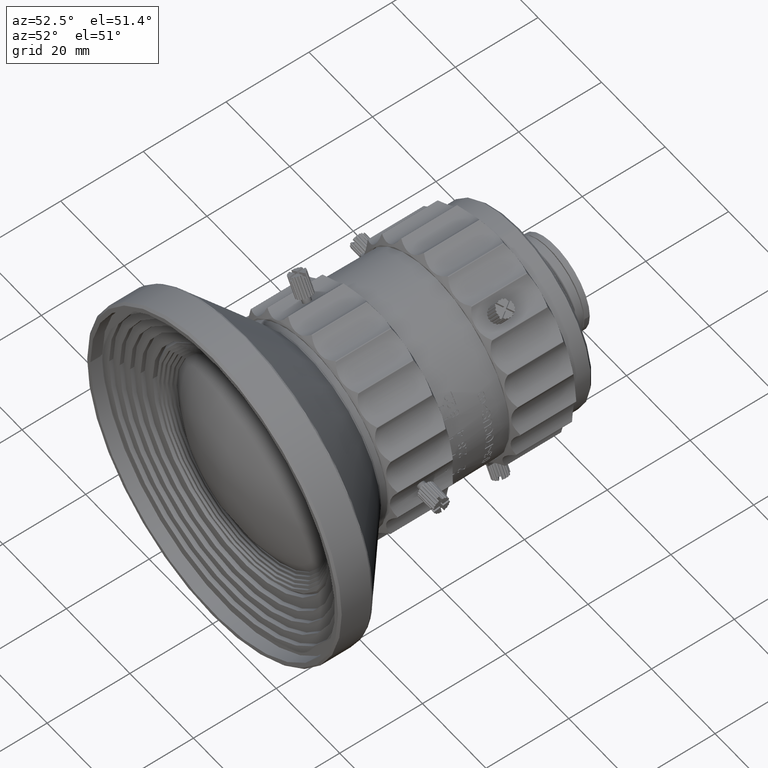
[diagram: clean part render]
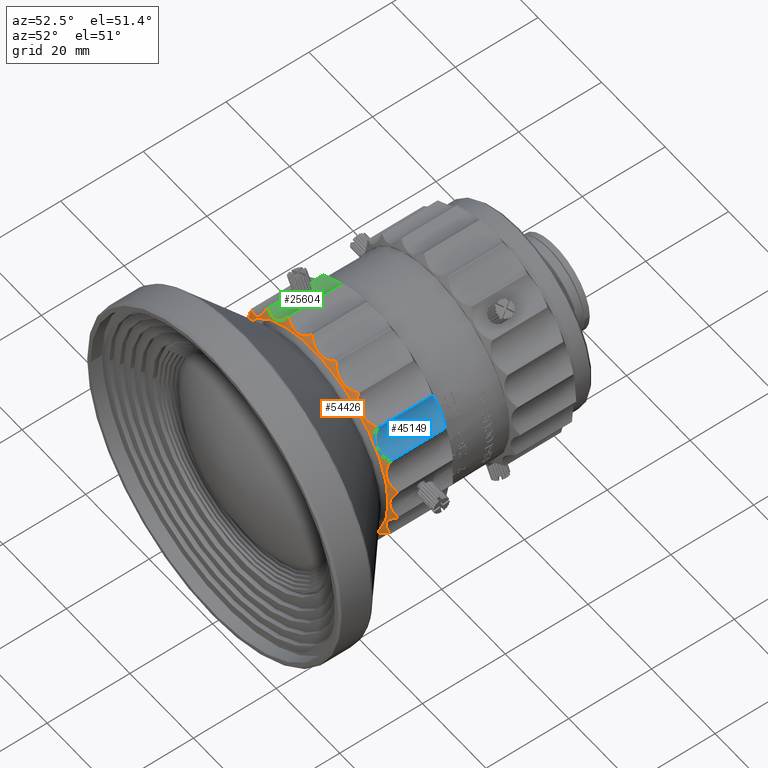
[diagram: same view with three faces highlighted in distinct colors, each labeled with its STEP entity id]
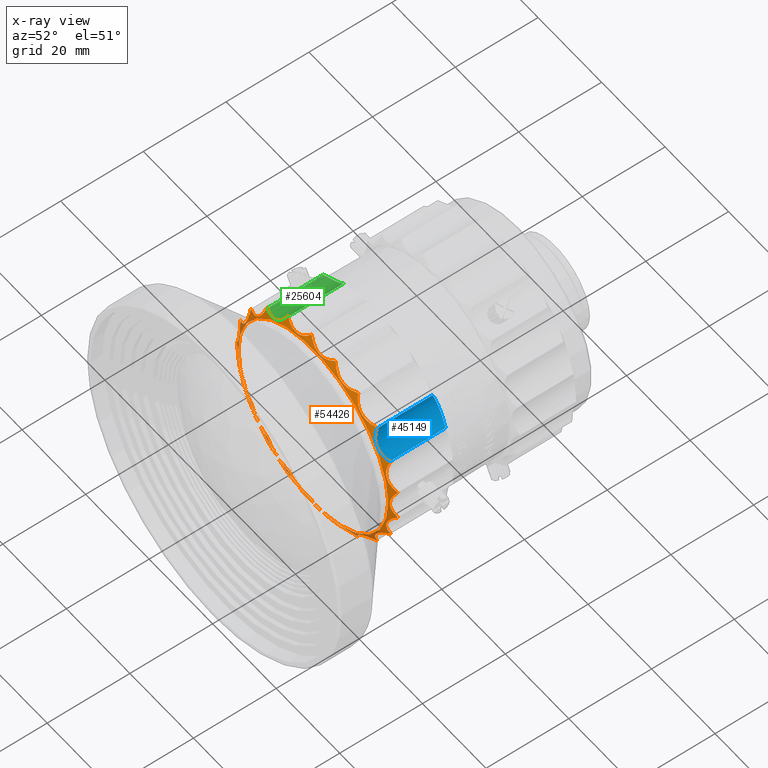
[diagram: x-ray of the same camera — body ghosted, the three highlighted faces saturated]
A machine part, auxiliary view with three faces highlighted in distinct colors.
The next image is the same camera in x-ray (body ghosted, the three faces saturated) — at least one of them is partly hidden behind the body in this view.
Their STEP definitions:

[orange] entity #54426 — the highlighted conical surface has half-angle 60 deg.
#115 = VERTEX_POINT ( 'NONE', #26229 ) ;
#287 = ORIENTED_EDGE ( 'NONE', *, *, #83580, .T. ) ;
#382 = CARTESIAN_POINT ( 'NONE',  ( -12.23831301489829748, 24.47379505658525645, 20.53129627703142290 ) ) ;
#383 = DIRECTION ( 'NONE',  ( 1.000000000000000000, -2.940207327727504421E-16, 1.836133133014498953E-11 ) ) ;
#729 = ORIENTED_EDGE ( 'NONE', *, *, #61579, .T. ) ;
#745 = B_SPLINE_CURVE_WITH_KNOTS ( 'NONE', 3,
 ( #110795, #69825, #7313, #103365, #93727, #51103 ),
 .UNSPECIFIED., .F., .F.,
 ( 4, 2, 4 ),
 ( 7.757919228897726952E-18, 0.0001644141553623823982, 0.0003288283107247570443 ),
 .UNSPECIFIED. ) ;
#895 = CARTESIAN_POINT ( 'NONE',  ( -20.90097677180437330, 25.33706370086007809, 14.42403118449156807 ) ) ;
#955 = CARTESIAN_POINT ( 'NONE',  ( -10.63081991278970762, 24.63390651818840382, 21.71649081805131587 ) ) ;
#1300 = CARTESIAN_POINT ( 'NONE',  ( -21.86008770118464639, 24.50002164830052465, -9.774186002567015308 ) ) ;
#1437 = CARTESIAN_POINT ( 'NONE',  ( -9.391759939298818693, 25.35822982019824323, -23.63393671508431382 ) ) ;
#1513 = CARTESIAN_POINT ( 'NONE',  ( 6.774960284222493634, 24.78684744728237277, -23.48615333596872645 ) ) ;
#1514 = DIRECTION ( 'NONE',  ( 3.638181863438339145E-16, 1.000000000000000000, 2.323621186487833834E-16 ) ) ;
#1904 = EDGE_LOOP ( 'NONE', ( #74985, #35957, #13651, #44954, #111343, #8399, #97270, #105815, #46204, #43041, #34806, #81341, #14587, #54865, #81866, #44868, #81149, #729, #17836, #68868, #60602, #54773, #22855, #23498, #287, #15712, #73336, #24569, #89299, #17882, #71815, #41616, #63994, #69604, #31243, #63172, #70133, #19769, #29564, #37555, #30413, #76303 ) ) ;
#1927 = B_SPLINE_CURVE_WITH_KNOTS ( 'NONE', 3,
 ( #82598, #46849, #81485, #3629, #38312, #72961, #74070, #107655, #64435, #65556, #21219, #55926, #104018, #27267, #111986, #26130, #9636, #14374 ),
 .UNSPECIFIED., .F., .F.,
 ( 4, 2, 2, 2, 2, 2, 2, 2, 4 ),
 ( 1.315215165163799032E-10, 0.001003702040467653730, 0.002007403949413790693, 0.003011105858359927872, 0.003512956812832996895, 0.004014807767306067220, 0.005018509676252194858, 0.006022211585198319027, 0.008029615403090569967 ),
 .UNSPECIFIED. ) ;
#2008 = CARTESIAN_POINT ( 'NONE',  ( -21.84642559030722708, 24.49395106369203745, 9.782983935118375385 ) ) ;
#2401 = CARTESIAN_POINT ( 'NONE',  ( -21.26966781566594733, 24.49395106369250641, -10.98063298597601900 ) ) ;
#2509 = B_SPLINE_CURVE_WITH_KNOTS ( 'NONE', 3,
 ( #106469, #62151, #28570, #53085, #54196, #63266 ),
 .UNSPECIFIED., .F., .F.,
 ( 4, 2, 4 ),
 ( 0.000000000000000000, 0.0001644140867908846072, 0.0003288281735817692145 ),
 .UNSPECIFIED. ) ;
#2540 = CARTESIAN_POINT ( 'NONE',  ( -9.652484914242650760, 25.07844969826452797, -23.00815608294285397 ) ) ;
#2658 = VERTEX_POINT ( 'NONE', #43154 ) ;
#3097 = CARTESIAN_POINT ( 'NONE',  ( -12.25138631248945487, 24.47937016225224838, -20.53265583036457542 ) ) ;
#3402 = CARTESIAN_POINT ( 'NONE',  ( 22.95832936079571596, 25.37205000964630486, 10.99559537557177435 ) ) ;
#3541 = B_SPLINE_CURVE_WITH_KNOTS ( 'NONE', 3,
 ( #75205, #75775, #100802, #49647, #93417, #16075, #84300, #57053, #50228, #15517, #109902, #110475, #22913, #6436, #84866, #50793 ),
 .UNSPECIFIED., .F., .F.,
 ( 4, 2, 2, 2, 2, 2, 2, 4 ),
 ( -0.003569091671438096025, -0.002564876732692541843, -0.001560661793946988094, -0.0005564468552014343455, 0.0004477680835441198368, 0.001451983022289674019, 0.002456197961035227334, 0.004464627838526335699 ),
 .UNSPECIFIED. ) ;
#3629 = CARTESIAN_POINT ( 'NONE',  ( 13.24619705269522996, 24.87981390206180166, -20.73432385937292821 ) ) ;
#3685 = CARTESIAN_POINT ( 'NONE',  ( -15.97549845769552235, 25.20788189031693349, 19.45303911351436810 ) ) ;
#4171 = VERTEX_POINT ( 'NONE', #49982 ) ;
#4189 = CARTESIAN_POINT ( 'NONE',  ( -14.13809538544489008, 24.78684741988568874, -19.94025364672699752 ) ) ;
#4261 = CARTESIAN_POINT ( 'NONE',  ( 11.32687030652311932, 24.86050124474918732, -21.81105883212519814 ) ) ;
#4579 = CARTESIAN_POINT ( 'NONE',  ( 18.69754077753782440, 25.37198653376644941, -17.27380523829919667 ) ) ;
#4908 = CARTESIAN_POINT ( 'NONE',  ( -24.40487641239396766, 24.78684741988754325, -1.378936020828931852 ) ) ;
#4938 = B_SPLINE_CURVE_WITH_KNOTS ( 'NONE', 3,
 ( #44760, #26561, #33969, #111849, #19159, #27686 ),
 .UNSPECIFIED., .F., .F.,
 ( 4, 2, 4 ),
 ( 8.944667923005411581E-19, 0.0001644140867937396910, 0.0003288281735874784605 ),
 .UNSPECIFIED. ) ;
#4981 = CARTESIAN_POINT ( 'NONE',  ( 23.92762813739965821, 24.49395106369019359, 0.6646459334354283266 ) ) ;
#5730 = CARTESIAN_POINT ( 'NONE',  ( -7.626821696442469545, 24.78542365346142162, 23.22087336732188589 ) ) ;
#5804 = CARTESIAN_POINT ( 'NONE',  ( 25.17936374819096557, 25.37205000964690171, -3.740004964084009842 ) ) ;
#5819 = CARTESIAN_POINT ( 'NONE',  ( 1.441878675376857322, 24.47945628798919415, -23.86659843680243043 ) ) ;
#6118 = CARTESIAN_POINT ( 'NONE',  ( -15.72084727735828125, 25.33706370085887727, -19.94388241962598585 ) ) ;
#6436 = CARTESIAN_POINT ( 'NONE',  ( -0.7567393065033932720, 24.86540902505414152, 24.57373635757808117 ) ) ;
#6758 = CARTESIAN_POINT ( 'NONE',  ( 5.764379306261820268, 25.35825239773012285, 24.76978204961731933 ) ) ;
#6775 = CARTESIAN_POINT ( 'NONE',  ( 22.94206651751589021, 25.33706370085890214, -10.88876165961012354 ) ) ;
#6824 = CARTESIAN_POINT ( 'NONE',  ( -18.13588671656010121, 24.51530814269462155, -15.67656778933500306 ) ) ;
#6841 = CARTESIAN_POINT ( 'NONE',  ( 19.00178606689671312, 24.63321955789962914, 14.94971439571006755 ) ) ;
#6995 = CARTESIAN_POINT ( 'NONE',  ( -23.94482759241260794, 25.20788189032046489, -7.764179294375796125 ) ) ;
#7191 = CARTESIAN_POINT ( 'NONE',  ( 5.611200690427403437, 25.37204957269194594, -24.82946515326301906 ) ) ;
#7313 = CARTESIAN_POINT ( 'NONE',  ( -15.91417613990792468, 25.37198654453910862, 19.86759569830248751 ) ) ;
#7409 = CARTESIAN_POINT ( 'NONE',  ( -6.978787555570345802, 24.63416883444635985, 23.15031677563627355 ) ) ;
#7447 = CARTESIAN_POINT ( 'NONE',  ( 15.17478345873239576, 24.47937016225057860, 18.47734934943214569 ) ) ;
#7545 = EDGE_CURVE ( 'NONE', #22862, #94500, #72878, .T. ) ;
#7951 = CARTESIAN_POINT ( 'NONE',  ( 20.61465591973719214, 24.57528408630916772, 12.44070395487644554 ) ) ;
#7963 = CARTESIAN_POINT ( 'NONE',  ( -4.509739973551099013, 24.51515716930673960, 23.54389418476198870 ) ) ;
#8133 = CARTESIAN_POINT ( 'NONE',  ( -23.81307039959513361, 24.87981386977759257, 6.189633875789312789 ) ) ;
#8320 = CARTESIAN_POINT ( 'NONE',  ( -15.41009838185490466, 25.20774525849734715, 19.90362626367890542 ) ) ;
#8347 = CARTESIAN_POINT ( 'NONE',  ( 22.88941938784381236, 24.47405427491911212, 6.879043343357172269 ) ) ;
#8399 = ORIENTED_EDGE ( 'NONE', *, *, #11846, .F. ) ;
#8700 = CARTESIAN_POINT ( 'NONE',  ( -23.58924425965324190, 24.47937016225490581, 3.903073297471075342 ) ) ;
#8847 = FACE_BOUND ( 'NONE', #73225, .T. ) ;
#8885 = CARTESIAN_POINT ( 'NONE',  ( -9.674849843370587621, 25.08999305205367492, 23.01774854853006147 ) ) ;
#9081 = CARTESIAN_POINT ( 'NONE',  ( 19.94690464892055459, 24.47937016225214890, 13.18360684073454259 ) ) ;
#9319 = B_SPLINE_CURVE_WITH_KNOTS ( 'NONE', 3,
 ( #51370, #86570, #85997, #8133, #34861, #42830, #77479, #112176, #69525, #8700, #104211, #26319, #61007, #88263, #88821, #10940, #29106, #10377 ),
 .UNSPECIFIED., .F., .F.,
 ( 4, 2, 2, 2, 2, 2, 2, 2, 4 ),
 ( 0.000000000000000000, 0.001003701892336417503, 0.002007403784672835007, 0.003011105677009252943, 0.003512956623177459960, 0.004014807569345668278, 0.005018509461682084914, 0.006022211354018501550, 0.008029615138691331352 ),
 .UNSPECIFIED. ) ;
#9338 = CARTESIAN_POINT ( 'NONE',  ( -4.994513334107787195, 24.47375624480995526, -23.37438729070457555 ) ) ;
#9450 = CARTESIAN_POINT ( 'NONE',  ( 10.01242172563758714, 24.57327255884088757, -21.89338019976560901 ) ) ;
#9522 = CARTESIAN_POINT ( 'NONE',  ( -24.96133664154009324, 25.09004967232839789, -0.5966234141666105772 ) ) ;
#9636 = CARTESIAN_POINT ( 'NONE',  ( 17.89124058654359573, 25.07844969391309675, -17.39106852357362598 ) ) ;
#9961 = CARTESIAN_POINT ( 'NONE',  ( -20.95157493876802235, 25.35825244009657808, 14.41532646487866209 ) ) ;
#10015 = CARTESIAN_POINT ( 'NONE',  ( 5.790967719412029702, 25.33706375249489184, -24.72586113302849142 ) ) ;
#10377 = CARTESIAN_POINT ( 'NONE',  ( -25.39454316477383955, 25.33706370085985426, 0.1437540735791313640 ) ) ;
#10940 = CARTESIAN_POINT ( 'NONE',  ( -24.55236549897134779, 24.86050125257193244, 1.096173179540908871 ) ) ;
#11593 = CARTESIAN_POINT ( 'NONE',  ( -9.411484485477549455, 25.33706370085638326, -23.58659472577447147 ) ) ;
#11630 = EDGE_CURVE ( 'NONE', #103020, #111629, #57578, .T. ) ;
#11846 = EDGE_CURVE ( 'NONE', #103356, #73466, #745, .T. ) ;
#11997 = CARTESIAN_POINT ( 'NONE',  ( 6.550806353596806630, 24.87764212916365381, 23.71238271739032299 ) ) ;
#12139 = CARTESIAN_POINT ( 'NONE',  ( 18.51774128777790906, 25.33706370085625181, 17.37805572661697795 ) ) ;
#12305 = CARTESIAN_POINT ( 'NONE',  ( -23.56131463176064855, 24.49395106369220443, -4.223449400619509575 ) ) ;
#12939 = CARTESIAN_POINT ( 'NONE',  ( 24.75189152012137939, 25.07844969826752290, 3.144780896093590794 ) ) ;
#13231 = B_SPLINE_CURVE_WITH_KNOTS ( 'NONE', 3,
 ( #66589, #32477, #23935, #67153, #59200, #15965, #75669, #85323, #110368, #7447, #101266, #42137, #76785, #13717, #101832, #93307, #109800, #111483 ),
 .UNSPECIFIED., .F., .F.,
 ( 4, 2, 2, 2, 2, 2, 2, 2, 4 ),
 ( 3.469446951953613804E-18, 0.001003701892336532212, 0.002007403784673060954, 0.003011105677009589480, 0.003512956623177853309, 0.004014807569346116704, 0.005018509461682646965, 0.006022211354019178960, 0.008029615138692250756 ),
 .UNSPECIFIED. ) ;
#13514 = CARTESIAN_POINT ( 'NONE',  ( -15.82874959626673039, 25.37206659960357058, -19.93589904127509627 ) ) ;
#13651 = ORIENTED_EDGE ( 'NONE', *, *, #77950, .T. ) ;
#13717 = CARTESIAN_POINT ( 'NONE',  ( 13.95401393759160591, 24.57327256628192558, 19.61770170346335362 ) ) ;
#14374 = CARTESIAN_POINT ( 'NONE',  ( 18.51774128841703160, 25.33706370085684867, -17.37805491711063866 ) ) ;
#14424 = CARTESIAN_POINT ( 'NONE',  ( -18.80318777537105746, 24.63321955790260631, 15.19874701970956465 ) ) ;
#14476 = CARTESIAN_POINT ( 'NONE',  ( -8.564018403089471931, 25.09004967232336014, -23.45382441534209761 ) ) ;
#14587 = ORIENTED_EDGE ( 'NONE', *, *, #86465, .T. ) ;
#14631 = CARTESIAN_POINT ( 'NONE',  ( -21.00130865086147125, 25.37198653376951896, -14.38496994126841422 ) ) ;
#14698 = CARTESIAN_POINT ( 'NONE',  ( 5.510668854198438105, 25.33706370085377557, -24.78983742764600962 ) ) ;
#14885 = CARTESIAN_POINT ( 'NONE',  ( 25.13233386509582701, 25.33706370085971571, -3.642711901393926421 ) ) ;
#15290 = CARTESIAN_POINT ( 'NONE',  ( 22.64425070892173864, 24.51530814269365521, -7.867854722026411451 ) ) ;
#15355 = CARTESIAN_POINT ( 'NONE',  ( 19.84487323712701468, 24.47405427491778696, 13.32020136406450384 ) ) ;
#15367 = CARTESIAN_POINT ( 'NONE',  ( -1.957470027417988145, 25.37199193705267675, -25.38013348754926923 ) ) ;
#15380 = CARTESIAN_POINT ( 'NONE',  ( 12.68012189051256300, 25.37198653376437107, 22.07253747928279353 ) ) ;
#15426 = B_SPLINE_CURVE_WITH_KNOTS ( 'NONE', 3,
 ( #68774, #101778, #24436, #77863, #24994, #69331 ),
 .UNSPECIFIED., .F., .F.,
 ( 4, 2, 4 ),
 ( 1.508200129006291679E-10, 0.0001644143131836828058, 0.0003288284755473527203 ),
 .UNSPECIFIED. ) ;
#15517 = CARTESIAN_POINT ( 'NONE',  ( 1.448752275189375771, 24.47405345817460187, 23.85858691888648409 ) ) ;
#15558 = CARTESIAN_POINT ( 'NONE',  ( -17.08491992955151773, 24.50002164829892237, 16.77807156626739626 ) ) ;
#15712 = ORIENTED_EDGE ( 'NONE', *, *, #108288, .F. ) ;
#15915 = CARTESIAN_POINT ( 'NONE',  ( 21.66623698840288625, 24.87981386977493869, 11.65967976713495347 ) ) ;
#15965 = CARTESIAN_POINT ( 'NONE',  ( 16.33194808253045949, 24.63401784186363130, 17.82966866903327485 ) ) ;
#16068 = CARTESIAN_POINT ( 'NONE',  ( -21.95090971615773512, 24.51530814269604974, -9.634455190885084619 ) ) ;
#16075 = CARTESIAN_POINT ( 'NONE',  ( 3.448250549378863106, 24.63359460793930822, 23.93123450153583676 ) ) ;
#16265 = CARTESIAN_POINT ( 'NONE',  ( 5.553676885111819672, 25.35825058630851814, -24.81786945768130437 ) ) ;
#16275 = CARTESIAN_POINT ( 'NONE',  ( -11.80074017730789926, 24.47403409550805620, 20.78431121513285618 ) ) ;
#16471 = CARTESIAN_POINT ( 'NONE',  ( 21.38973711194316607, 24.78684741988481832, 11.83125852879825501 ) ) ;
#16673 = CARTESIAN_POINT ( 'NONE',  ( -17.74555582414154387, 24.47375624481529499, 16.01257028546855210 ) ) ;
#16796 = DIRECTION ( 'NONE',  ( 3.638181863438339145E-16, 1.000000000000000000, 2.323621186487833834E-16 ) ) ;
#16861 = CARTESIAN_POINT ( 'NONE',  ( 23.36576637347228669, 24.57528408631062078, 5.811722107506476220 ) ) ;
#17207 = CARTESIAN_POINT ( 'NONE',  ( 18.71329594186267542, 25.33706370085689130, 17.16729793340505239 ) ) ;
#17287 = CARTESIAN_POINT ( 'NONE',  ( -4.676415826211915316, 24.49395106368605823, -23.47560900000252815 ) ) ;
#17401 = CARTESIAN_POINT ( 'NONE',  ( -14.13098936602178313, 24.78500006465383265, 19.94134291622694732 ) ) ;
#17712 = CARTESIAN_POINT ( 'NONE',  ( 5.510668854198438105, 25.33706370085377557, -24.78983742764600962 ) ) ;
#17829 = CARTESIAN_POINT ( 'NONE',  ( -20.90097677127236864, 25.33706370085989334, -14.42403037643508590 ) ) ;
#17836 = ORIENTED_EDGE ( 'NONE', *, *, #59141, .T. ) ;
#17859 = CARTESIAN_POINT ( 'NONE',  ( -6.153647384968114586, 24.51530814268947722, -23.16889723825535086 ) ) ;
#17882 = ORIENTED_EDGE ( 'NONE', *, *, #11630, .F. ) ;
#17974 = CARTESIAN_POINT ( 'NONE',  ( -9.411484486349726453, 25.33706370085752724, 23.58659553425541233 ) ) ;
#18330 = CARTESIAN_POINT ( 'NONE',  ( -21.01768967513055131, 24.63321955790332041, -11.95066848102772461 ) ) ;
#18431 = CARTESIAN_POINT ( 'NONE',  ( -2.008250044491363351, 25.35825244561891267, 25.35226019774495754 ) ) ;
#18537 = CARTESIAN_POINT ( 'NONE',  ( -12.54043758652123053, 24.49403746330698795, 20.38915733181555012 ) ) ;
#18992 = CARTESIAN_POINT ( 'NONE',  ( -2.441878882888370406, 25.07844969826212989, -24.83108832703373281 ) ) ;
#19011 = CARTESIAN_POINT ( 'NONE',  ( -25.39454316477383955, 25.33706370085985426, 0.1437540735791313640 ) ) ;
#19056 = EDGE_CURVE ( 'NONE', #62915, #99045, #35099, .T. ) ;
#19159 = CARTESIAN_POINT ( 'NONE',  ( -25.43144578907096687, 25.35825244009647506, 0.1080589343636321475 ) ) ;
#19240 = EDGE_CURVE ( 'NONE', #20591, #66471, #9319, .T. ) ;
#19253 = CARTESIAN_POINT ( 'NONE',  ( -24.22396269439712668, 25.33706370086234472, -7.622539899549274800 ) ) ;
#19423 = CARTESIAN_POINT ( 'NONE',  ( 10.02396798824489288, 24.57512546163905043, 21.89162332205059869 ) ) ;
#19654 = CARTESIAN_POINT ( 'NONE',  ( 12.57277830369329230, 25.33706370085577575, -22.06419653497933808 ) ) ;
#19678 = B_SPLINE_CURVE_WITH_KNOTS ( 'NONE', 3,
 ( #6775, #31792, #93191, #100588, #58528, #76112, #57405, #15290, #67590, #74983, #110249, #23261, #47750, #84074, #65350, #92064, #100030, #56837 ),
 .UNSPECIFIED., .F., .F.,
 ( 4, 2, 2, 2, 2, 2, 2, 2, 4 ),
 ( 1.734723475976807094E-18, 0.001003701892336571894, 0.002007403784673142053, 0.003011105677009711778, 0.003512956623177999893, 0.004014807569346287575, 0.005018509461682859468, 0.006022211354019431362, 0.008029615138692571680 ),
 .UNSPECIFIED. ) ;
#19769 = ORIENTED_EDGE ( 'NONE', *, *, #27255, .F. ) ;
#20591 = VERTEX_POINT ( 'NONE', #102110 ) ;
#20673 = CARTESIAN_POINT ( 'NONE',  ( -15.41042672070831188, 25.20788189031700099, -19.90366797774477092 ) ) ;
#20988 = VERTEX_POINT ( 'NONE', #71377 ) ;
#20991 = CARTESIAN_POINT ( 'NONE',  ( 22.81732175772382476, 25.33706370085737447, 11.14779763124938050 ) ) ;
#21219 = CARTESIAN_POINT ( 'NONE',  ( 14.76596480519577881, 24.47405427632558528, -18.79396202443571440 ) ) ;
#21271 = B_SPLINE_CURVE_WITH_KNOTS ( 'NONE', 3,
 ( #23637, #93003, #49811, #41280, #85021, #44090, #62267, #70790, #27575, #43527, #105473, #103777, #2008, #96929, #52640, #61710, #53762, #77612 ),
 .UNSPECIFIED., .F., .F.,
 ( 4, 2, 2, 2, 2, 2, 2, 2, 4 ),
 ( 1.734723475976807094E-18, 0.001003701892336848365, 0.002007403784673694996, 0.003011105677010541843, 0.003512956623178963532, 0.004014807569347385655, 0.005018509461684232502, 0.006022211354021081951, 0.008029615138694773044 ),
 .UNSPECIFIED. ) ;
#21458 = CARTESIAN_POINT ( 'NONE',  ( 23.90749611343437664, 24.47937016225344564, -0.3436838630083050572 ) ) ;
#21573 = EDGE_CURVE ( 'NONE', #60484, #20988, #48157, .T. ) ;
#21741 = CARTESIAN_POINT ( 'NONE',  ( -1.754384233487920497, 25.33706370085467441, -25.33427789089196480 ) ) ;
#21791 = CARTESIAN_POINT ( 'NONE',  ( -12.10019304438986687, 24.47405427491784025, -20.61145347295434860 ) ) ;
#22243 = CARTESIAN_POINT ( 'NONE',  ( 12.68057969685785835, 25.37205626688258064, -22.07241292652005882 ) ) ;
#22296 = CARTESIAN_POINT ( 'NONE',  ( -0.003916730935108777949, 24.67409523816892047, -24.24712074209752899 ) ) ;
#22772 = CARTESIAN_POINT ( 'NONE',  ( -1.792714868395217209, 25.35824004827894740, -25.36838986549088304 ) ) ;
#22855 = ORIENTED_EDGE ( 'NONE', *, *, #84550, .T. ) ;
#22862 = VERTEX_POINT ( 'NONE', #71198 ) ;
#22870 = B_SPLINE_CURVE_WITH_KNOTS ( 'NONE', 3,
 ( #108058, #47790, #4579, #106387, #72259, #39269 ),
 .UNSPECIFIED., .F., .F.,
 ( 4, 2, 4 ),
 ( 0.000000000000000000, 0.0001644140867934237545, 0.0003288281735868475090 ),
 .UNSPECIFIED. ) ;
#22913 = CARTESIAN_POINT ( 'NONE',  ( 0.1483065125421898778, 24.63544443513628224, 24.18112770432537317 ) ) ;
#23125 = B_SPLINE_CURVE_WITH_KNOTS ( 'NONE', 3,
 ( #21741, #108733, #30839, #22296, #57007, #40506, #100754, #48478, #39948, #5819, #109855, #103574, #70022, #104133, #85375, #94485, #23990, #103006, #24549, #17712 ),
 .UNSPECIFIED., .F., .F.,
 ( 4, 2, 2, 2, 2, 2, 2, 2, 2, 4 ),
 ( -0.002178529373782832606, -0.0001699109945060197496, 0.0003322436003131818381, 0.0008343981951323829922, 0.001336552789951584580, 0.001838707384770785300, 0.002843016574409186741, 0.003847325764047587315, 0.004851634953685990057, 0.005855944143324388895 ),
 .UNSPECIFIED. ) ;
#23152 = EDGE_CURVE ( 'NONE', #109177, #70537, #50914, .T. ) ;
#23261 = CARTESIAN_POINT ( 'NONE',  ( 22.93578836560742573, 24.47375624481440326, -6.727318135916918074 ) ) ;
#23341 = CARTESIAN_POINT ( 'NONE',  ( -2.241382817017162132, 25.20782151405308014, 25.07206191842640308 ) ) ;
#23498 = ORIENTED_EDGE ( 'NONE', *, *, #89175, .F. ) ;
#23637 = CARTESIAN_POINT ( 'NONE',  ( -21.06293542284998566, 25.33706370085960913, 14.18648147288368655 ) ) ;
#23688 = CARTESIAN_POINT ( 'NONE',  ( 18.71329594186267542, 25.33706370085689130, 17.16729793340505239 ) ) ;
#23698 = CARTESIAN_POINT ( 'NONE',  ( 7.004645570096111509E-07, 24.30075745948389709, 4.044133971831641983E-07 ) ) ;
#23885 = CARTESIAN_POINT ( 'NONE',  ( 20.15916308389163447, 24.50002164829660600, 12.92309433909537297 ) ) ;
#23935 = CARTESIAN_POINT ( 'NONE',  ( 17.89214850629248943, 25.09004967232461070, 17.41537776972861806 ) ) ;
#23960 = EDGE_CURVE ( 'NONE', #85372, #37791, #69811, .T. ) ;
#23990 = CARTESIAN_POINT ( 'NONE',  ( 4.382810723535587094, 24.87649188082792051, -24.20502678447684630 ) ) ;
#24104 = CARTESIAN_POINT ( 'NONE',  ( 22.94206651751589021, 25.33706370085890214, -10.88876165961012354 ) ) ;
#24256 = CARTESIAN_POINT ( 'NONE',  ( 19.00030155273914900, 24.63401784186537924, -14.95386676231514222 ) ) ;
#24436 = CARTESIAN_POINT ( 'NONE',  ( -9.248752962694208435, 25.37198652129522358, 23.71587949200347722 ) ) ;
#24549 = CARTESIAN_POINT ( 'NONE',  ( 5.248122714857021975, 25.20772657793886751, -24.61871354434019921 ) ) ;
#24569 = ORIENTED_EDGE ( 'NONE', *, *, #95113, .F. ) ;
#24591 = CARTESIAN_POINT ( 'NONE',  ( -22.45057857688512826, 24.63401784186923393, -8.977809229838545235 ) ) ;
#24768 = EDGE_CURVE ( 'NONE', #4171, #58370, #15426, .T. ) ;
#24822 = CARTESIAN_POINT ( 'NONE',  ( 22.94665588774202547, 24.47937016225347406, 6.718443044865145986 ) ) ;
#24936 = B_SPLINE_CURVE_WITH_KNOTS ( 'NONE', 3,
 ( #19253, #26090, #104550, #42604, #52273, #96026 ),
 .UNSPECIFIED., .F., .F.,
 ( 4, 2, 4 ),
 ( 8.673617379884035472E-19, 0.0001644140867908260332, 0.0003288281735816511991 ),
 .UNSPECIFIED. ) ;
#24994 = CARTESIAN_POINT ( 'NONE',  ( -9.391738851601967752, 25.35825245003239559, 23.63398813942536592 ) ) ;
#25211 = CARTESIAN_POINT ( 'NONE',  ( -17.99226514975597624, 24.49395106369152941, 15.78770061739931663 ) ) ;
#25371 = CARTESIAN_POINT ( 'NONE',  ( -10.19995740668920270, 24.78673862856138399, 22.21376160282899548 ) ) ;
#25558 = CARTESIAN_POINT ( 'NONE',  ( -15.94562956664423048, 25.33706370085900872, -19.76462452563537298 ) ) ;
#26090 = CARTESIAN_POINT ( 'NONE',  ( -24.26971814915080827, 25.35823901147409742, -7.599322558284392848 ) ) ;
#26130 = CARTESIAN_POINT ( 'NONE',  ( 17.25257184043941194, 24.86050124487938007, -17.50340124107833972 ) ) ;
#26204 = VERTEX_POINT ( 'NONE', #100529 ) ;
#26229 = CARTESIAN_POINT ( 'NONE',  ( 25.08948311971405332, 25.33706370085953097, -3.927008021228063583 ) ) ;
#26304 = CARTESIAN_POINT ( 'NONE',  ( -9.411484485477549455, 25.33706370085638326, -23.58659472577447147 ) ) ;
#26319 = CARTESIAN_POINT ( 'NONE',  ( -23.68226796712466253, 24.47375624481545842, 3.233778584777687204 ) ) ;
#26477 = B_SPLINE_CURVE_WITH_KNOTS ( 'NONE', 3,
 ( #40789, #86215, #111814, #112389, #85649, #77123, #16861, #102719, #77693, #24822, #8347, #93646, #94759, #69176, #43043, #75446, #103285, #50458 ),
 .UNSPECIFIED., .F., .F.,
 ( 4, 2, 2, 2, 2, 2, 2, 2, 4 ),
 ( 8.673617379884035472E-19, 0.001003701892336433116, 0.002007403784672865364, 0.003011105677009297613, 0.003512956623177515038, 0.004014807569345732463, 0.005018509461682163844, 0.006022211354018597827, 0.008029615138691464926 ),
 .UNSPECIFIED. ) ;
#26507 = CARTESIAN_POINT ( 'NONE',  ( 8.570336775489039383, 24.47405427634960873, -22.31134333105754308 ) ) ;
#26561 = CARTESIAN_POINT ( 'NONE',  ( -25.43142240157523659, 25.35823901147254489, -0.1080807487093712604 ) ) ;
#27015 = CARTESIAN_POINT ( 'NONE',  ( -21.00162820445502021, 25.37205000964794621, 14.38469876710894901 ) ) ;
#27255 = EDGE_CURVE ( 'NONE', #43552, #28476, #101699, .T. ) ;
#27267 = CARTESIAN_POINT ( 'NONE',  ( 16.02078517131422331, 24.57327255896438345, -17.96950582179026412 ) ) ;
#27575 = CARTESIAN_POINT ( 'NONE',  ( -21.27130813418416011, 24.50002164829926343, 10.99680018013040694 ) ) ;
#27582 = B_SPLINE_CURVE_WITH_KNOTS ( 'NONE', 3,
 ( #52014, #102591, #77557, #42905, #18431, #34935 ),
 .UNSPECIFIED., .F., .F.,
 ( 4, 2, 4 ),
 ( 8.389878595412691503E-11, 0.0001644142127296304486, 0.0003288283415604749751 ),
 .UNSPECIFIED. ) ;
#27686 = CARTESIAN_POINT ( 'NONE',  ( -25.39454316477383955, 25.33706370085985426, 0.1437540735791313640 ) ) ;
#28075 = CARTESIAN_POINT ( 'NONE',  ( -5.654984892673789787, 24.47937016224948437, -23.23160723986974574 ) ) ;
#28332 = CARTESIAN_POINT ( 'NONE',  ( 24.44151332975906854, 24.86050125257107979, 2.575411271847747763 ) ) ;
#28476 = VERTEX_POINT ( 'NONE', #23688 ) ;
#28504 = CARTESIAN_POINT ( 'NONE',  ( 11.96404466923192444, 25.09006200676330067, 21.91545626407154757 ) ) ;
#28570 = CARTESIAN_POINT ( 'NONE',  ( -24.34072419639047880, 25.37198653376836432, 7.450602917751538712 ) ) ;
#28884 = CARTESIAN_POINT ( 'NONE',  ( 25.13233386496205313, 25.33706370085964110, 3.642712711142745086 ) ) ;
#29106 = CARTESIAN_POINT ( 'NONE',  ( -24.94413716047845497, 25.07844969826805226, 0.5794224124336995185 ) ) ;
#29112 = CARTESIAN_POINT ( 'NONE',  ( 12.77533549374571642, 25.37198022540999531, -22.01755235437761726 ) ) ;
#29368 = CARTESIAN_POINT ( 'NONE',  ( -23.58330406916524780, 24.47375624481598422, -3.890360338047042621 ) ) ;
#29564 = ORIENTED_EDGE ( 'NONE', *, *, #108493, .T. ) ;
#29806 = CARTESIAN_POINT ( 'NONE',  ( -16.29428720459763014, 24.78684741988655560, 18.22074885845463754 ) ) ;
#29924 = CARTESIAN_POINT ( 'NONE',  ( -23.60645415454159490, 24.63321955790326356, -5.224660801098968577 ) ) ;
#29934 = B_SPLINE_CURVE_WITH_KNOTS ( 'NONE', 3,
 ( #84697, #102880, #66528, #40955, #75607, #76161, #110303, #6824, #32414, #67090, #58581, #93244, #41517, #77853, #68766, #106672, #34095, #25558 ),
 .UNSPECIFIED., .F., .F.,
 ( 4, 2, 2, 2, 2, 2, 2, 2, 4 ),
 ( 0.000000000000000000, 0.001003701892336186568, 0.002007403784672373136, 0.003011105677008559488, 0.003512956623176652013, 0.004014807569344744538, 0.005018509461680935660, 0.006022211354017127649, 0.008029615138689509893 ),
 .UNSPECIFIED. ) ;
#30376 = CARTESIAN_POINT ( 'NONE',  ( -24.22396269439712668, 25.33706370086234472, -7.622539899549274800 ) ) ;
#30413 = ORIENTED_EDGE ( 'NONE', *, *, #85424, .T. ) ;
#30785 = CARTESIAN_POINT ( 'NONE',  ( 12.82176693340590745, 25.33706375163848890, -21.92044298470975150 ) ) ;
#30839 = CARTESIAN_POINT ( 'NONE',  ( -0.7574689439644131106, 24.86570641298435191, -24.57421514855429834 ) ) ;
#30860 = CARTESIAN_POINT ( 'NONE',  ( 25.13126715854182436, 25.35823901147144355, 3.897231311563903233 ) ) ;
#30923 = CARTESIAN_POINT ( 'NONE',  ( 5.790967821094723966, 25.33706367073412125, 24.72586177259460527 ) ) ;
#31243 = ORIENTED_EDGE ( 'NONE', *, *, #42526, .T. ) ;
#31695 = CARTESIAN_POINT ( 'NONE',  ( -15.91421337531865099, 25.37196978791298463, -19.86752777902669820 ) ) ;
#31792 = CARTESIAN_POINT ( 'NONE',  ( 22.83378526346826476, 25.20788189031711823, -10.59507254958293565 ) ) ;
#31950 = CARTESIAN_POINT ( 'NONE',  ( 25.16293133201535781, 25.37198653376788826, -3.848283414103770284 ) ) ;
#32414 = CARTESIAN_POINT ( 'NONE',  ( -18.00791328911733302, 24.50002164829913553, -15.78332049424490258 ) ) ;
#32477 = CARTESIAN_POINT ( 'NONE',  ( 18.20479422071749553, 25.20788189031444659, 17.38455623005630457 ) ) ;
#32676 = CARTESIAN_POINT ( 'NONE',  ( -9.143851450808966774, 25.33706370085500836, -23.69163295160786475 ) ) ;
#33140 = CARTESIAN_POINT ( 'NONE',  ( -23.16202666444103286, 24.87981386977944354, -8.300265017487085117 ) ) ;
#33324 = B_SPLINE_CURVE_WITH_KNOTS ( 'NONE', 3,
 ( #101795, #67668, #15367, #100663, #22772, #85282 ),
 .UNSPECIFIED., .F., .F.,
 ( 4, 2, 4 ),
 ( -0.0001792077240511219494, -1.496611666242477542E-05, 0.0001492754907262730491 ),
 .UNSPECIFIED. ) ;
#33553 = CARTESIAN_POINT ( 'NONE',  ( 22.52019410781546327, 25.20788189031562254, 11.24625210289274868 ) ) ;
#33565 = CARTESIAN_POINT ( 'NONE',  ( -2.460522521074651081, 25.08993944411609078, 24.84674440618492852 ) ) ;
#33836 = EDGE_CURVE ( 'NONE', #115, #2658, #91226, .T. ) ;
#33926 = CARTESIAN_POINT ( 'NONE',  ( 19.55969616596268423, 24.47937016225263562, -13.75153656763995969 ) ) ;
#33969 = CARTESIAN_POINT ( 'NONE',  ( -25.45543772737826416, 25.37198653376905355, -0.05496105937707223416 ) ) ;
#34095 = CARTESIAN_POINT ( 'NONE',  ( -16.00542523950108986, 25.07844969826730619, -19.14084816531617861 ) ) ;
#34290 = CARTESIAN_POINT ( 'NONE',  ( 18.62277419894408226, 25.37198653376567847, 17.35438525494129891 ) ) ;
#34806 = ORIENTED_EDGE ( 'NONE', *, *, #19240, .T. ) ;
#34856 = CARTESIAN_POINT ( 'NONE',  ( 18.56903915488878098, 25.35823901146902060, 17.37699017273720159 ) ) ;
#34861 = CARTESIAN_POINT ( 'NONE',  ( -23.72708484365944059, 24.78684741988747575, 5.875790065420839703 ) ) ;
#34935 = CARTESIAN_POINT ( 'NONE',  ( -2.041087644857172201, 25.33706370085393189, 25.31279324927719188 ) ) ;
#35048 = CARTESIAN_POINT ( 'NONE',  ( 7.541597430616408637, 24.57528410067336821, -22.86611939323319831 ) ) ;
#35099 = B_SPLINE_CURVE_WITH_KNOTS ( 'NONE', 3,
 ( #45199, #87835, #96382, #27015, #9961, #895 ),
 .UNSPECIFIED., .F., .F.,
 ( 4, 2, 4 ),
 ( 3.469446951953614189E-18, 0.0001644140867933974626, 0.0003288281735867914558 ),
 .UNSPECIFIED. ) ;
#35154 = EDGE_CURVE ( 'NONE', #69042, #111629, #92572, .T. ) ;
#35439 = CARTESIAN_POINT ( 'NONE',  ( 22.91098680482207328, 25.37205000964641499, -11.09390239719309612 ) ) ;
#35579 = CARTESIAN_POINT ( 'NONE',  ( 7.004645574033910506E-07, 25.38311128100266245, 4.044133974346622035E-07 ) ) ;
#35945 = CARTESIAN_POINT ( 'NONE',  ( 8.421616732478696576, 24.47388902391746157, 22.36946667677936063 ) ) ;
#35957 = ORIENTED_EDGE ( 'NONE', *, *, #57723, .T. ) ;
#35966 = CARTESIAN_POINT ( 'NONE',  ( -21.06293542232820926, 25.33706370086088100, -14.18648066483549997 ) ) ;
#36654 = CARTESIAN_POINT ( 'NONE',  ( -9.990384377802042692, 24.86050125256844368, -22.45467587318597324 ) ) ;
#37049 = EDGE_CURVE ( 'NONE', #103356, #99045, #47667, .T. ) ;
#37050 = CARTESIAN_POINT ( 'NONE',  ( 9.044672215769793411, 24.47401825973098255, 22.12512763063994825 ) ) ;
#37370 = CARTESIAN_POINT ( 'NONE',  ( -23.65903024073549332, 24.47405427492100571, -3.390718475923383046 ) ) ;
#37555 = ORIENTED_EDGE ( 'NONE', *, *, #23152, .F. ) ;
#37616 = CARTESIAN_POINT ( 'NONE',  ( 10.35080809918953371, 24.63401779943261261, 21.85154151077281881 ) ) ;
#37718 = CARTESIAN_POINT ( 'NONE',  ( -15.94562956664423048, 25.33706370085900872, -19.76462452563537298 ) ) ;
#37772 = CARTESIAN_POINT ( 'NONE',  ( -12.55565669264632689, 24.50002164829683693, -20.39003766011292385 ) ) ;
#37791 = VERTEX_POINT ( 'NONE', #72075 ) ;
#37848 = CARTESIAN_POINT ( 'NONE',  ( 10.34659908363677694, 24.63321954992976615, -21.85199485384474016 ) ) ;
#38257 = CARTESIAN_POINT ( 'NONE',  ( -15.94562956737311588, 25.33706370085859305, 19.76462533387321585 ) ) ;
#38312 = CARTESIAN_POINT ( 'NONE',  ( 13.39663318182580198, 24.78684744682773555, -20.44577502718264128 ) ) ;
#38324 = CARTESIAN_POINT ( 'NONE',  ( -15.09667928847786911, 25.09004967232709404, -19.88754784049615765 ) ) ;
#38362 = CARTESIAN_POINT ( 'NONE',  ( -16.02959785759016853, 25.09004967232724681, 19.14357091646163767 ) ) ;
#38394 = CARTESIAN_POINT ( 'NONE',  ( 11.97027544216367012, 25.07844969383892320, -21.89196765972281256 ) ) ;
#38770 = CARTESIAN_POINT ( 'NONE',  ( 12.80931621422939237, 25.35823388564679703, -21.97020547529104562 ) ) ;
#38878 = CARTESIAN_POINT ( 'NONE',  ( -15.72084727735828125, 25.33706370085887727, -19.94388241962598585 ) ) ;
#38979 = VERTEX_POINT ( 'NONE', #39521 ) ;
#39269 = CARTESIAN_POINT ( 'NONE',  ( 18.51774128841703160, 25.33706370085684867, -17.37805491711063866 ) ) ;
#39521 = CARTESIAN_POINT ( 'NONE',  ( -2.041087643923478634, 25.33706370085374360, -25.31279244052533173 ) ) ;
#39590 = CARTESIAN_POINT ( 'NONE',  ( -23.57244042390463079, 24.57327256628711254, -4.889652867470250186 ) ) ;
#39669 = CARTESIAN_POINT ( 'NONE',  ( 24.12148630505558700, 24.63321955790131668, 1.647946933028778371 ) ) ;
#39818 = CARTESIAN_POINT ( 'NONE',  ( 22.81732175813368713, 25.33706370085786830, -11.14779682158560092 ) ) ;
#39948 = CARTESIAN_POINT ( 'NONE',  ( 1.110360724508228980, 24.50017218979647637, -23.92023654910959607 ) ) ;
#39973 = EDGE_CURVE ( 'NONE', #103263, #20988, #81042, .T. ) ;
#40317 = CARTESIAN_POINT ( 'NONE',  ( 5.610785196267023878, 25.37198653989750952, 24.82944792544575208 ) ) ;
#40400 = B_SPLINE_CURVE_WITH_KNOTS ( 'NONE', 3,
 ( #99357, #56174, #99916, #73761, #82844, #80615, #108461, #106783, #55058, #21458, #89155, #90829, #4981, #56725, #39669, #28332, #12939, #28884 ),
 .UNSPECIFIED., .F., .F.,
 ( 4, 2, 2, 2, 2, 2, 2, 2, 4 ),
 ( 0.000000000000000000, 0.001003701892337010128, 0.002007403784674020256, 0.003011105677011029300, 0.003512956623179535123, 0.004014807569348040513, 0.005018509461685051291, 0.006022211354022062070, 0.008029615138696087964 ),
 .UNSPECIFIED. ) ;
#40506 = CARTESIAN_POINT ( 'NONE',  ( 0.4653378724731535576, 24.58060089142755444, -24.08073778036506596 ) ) ;
#40781 = CARTESIAN_POINT ( 'NONE',  ( 18.82795651338751597, 24.78684741988505280, -15.58869974874231978 ) ) ;
#40789 = CARTESIAN_POINT ( 'NONE',  ( 25.08948311956940458, 25.33706370085919701, 3.927008830975261766 ) ) ;
#40955 = CARTESIAN_POINT ( 'NONE',  ( -19.68645659422228889, 24.87981386977750020, -14.75863492921206266 ) ) ;
#40979 = CARTESIAN_POINT ( 'NONE',  ( -7.942670201475410252, 24.87690720413949919, 23.28178073816210514 ) ) ;
#41239 = VERTEX_POINT ( 'NONE', #107247 ) ;
#41280 = CARTESIAN_POINT ( 'NONE',  ( -20.93069597160993212, 24.87981386977717335, 12.93367175279891690 ) ) ;
#41517 = CARTESIAN_POINT ( 'NONE',  ( -17.08811761150890618, 24.49395106369124520, -16.76213910688112207 ) ) ;
#41557 = CARTESIAN_POINT ( 'NONE',  ( 12.82176696246689929, 25.33706370085537785, 21.92044367463724086 ) ) ;
#41616 = ORIENTED_EDGE ( 'NONE', *, *, #33836, .T. ) ;
#41783 = CARTESIAN_POINT ( 'NONE',  ( -6.978572309119277506, 24.63401784186252286, -23.15014202423650147 ) ) ;
#41866 = B_SPLINE_CURVE_WITH_KNOTS ( 'NONE', 3,
 ( #77748, #87401, #9522, #78887, #4908, #73131, #90755, #100396, #99842, #107825, #37370, #29368, #12305, #39590, #29924, #80543, #74234, #48126 ),
 .UNSPECIFIED., .F., .F.,
 ( 4, 2, 2, 2, 2, 2, 2, 2, 4 ),
 ( 1.761828530288944705E-18, 0.001003701892336414251, 0.002007403784672826767, 0.003011105677009239933, 0.003512956623177447817, 0.004014807569345656135, 0.005018509461682071904, 0.006022211354018487672, 0.008029615138691319209 ),
 .UNSPECIFIED. ) ;
#42086 = CARTESIAN_POINT ( 'NONE',  ( 20.26979648882452878, 24.51530814269208847, 12.79846052406111845 ) ) ;
#42137 = CARTESIAN_POINT ( 'NONE',  ( 14.64166908865694694, 24.47375624481105660, 18.89255759960332171 ) ) ;
#42406 = FACE_OUTER_BOUND ( 'NONE', #1904, .T. ) ;
#42446 = CARTESIAN_POINT ( 'NONE',  ( -9.531896936992476199, 25.20785087752375375, 23.29758685948257479 ) ) ;
#42526 = EDGE_CURVE ( 'NONE', #22862, #37791, #26477, .T. ) ;
#42604 = CARTESIAN_POINT ( 'NONE',  ( -24.34071078993768822, 25.37205000964802082, -7.451021524603810953 ) ) ;
#42830 = CARTESIAN_POINT ( 'NONE',  ( -23.60691864878638668, 24.63401784186775956, 5.229047598240176953 ) ) ;
#42905 = CARTESIAN_POINT ( 'NONE',  ( -1.956699026722721335, 25.37205001652730374, 25.38029375243166186 ) ) ;
#43033 = CARTESIAN_POINT ( 'NONE',  ( 18.70376301849587009, 25.09004967232597494, -16.54066454693110089 ) ) ;
#43041 = ORIENTED_EDGE ( 'NONE', *, *, #63730, .F. ) ;
#43043 = CARTESIAN_POINT ( 'NONE',  ( 22.56409561291178179, 24.63321955790080509, 8.684665988976727036 ) ) ;
#43154 = CARTESIAN_POINT ( 'NONE',  ( 25.13233386509582701, 25.33706370085971571, -3.642711901393926421 ) ) ;
#43527 = CARTESIAN_POINT ( 'NONE',  ( -21.39078936112175811, 24.47937016225492357, 10.68272273245820791 ) ) ;
#43552 = VERTEX_POINT ( 'NONE', #12139 ) ;
#43554 = EDGE_CURVE ( 'NONE', #68756, #87367, #1927, .T. ) ;
#43582 = CARTESIAN_POINT ( 'NONE',  ( 7.274972591365459706, 24.63401786057387000, -23.05871511208750846 ) ) ;
#43942 = CARTESIAN_POINT ( 'NONE',  ( -1.754384175746589669, 25.33706366843776436, 25.33427864743513780 ) ) ;
#44090 = CARTESIAN_POINT ( 'NONE',  ( -21.01684074044797157, 24.63401784186742915, 11.95499733309645052 ) ) ;
#44149 = CARTESIAN_POINT ( 'NONE',  ( -15.09216297380244320, 25.08833793107675447, 19.88728884689800935 ) ) ;
#44760 = CARTESIAN_POINT ( 'NONE',  ( -25.39454316476855666, 25.33706370085986848, -0.1437532656902766881 ) ) ;
#44868 = ORIENTED_EDGE ( 'NONE', *, *, #39973, .F. ) ;
#44909 = B_SPLINE_CURVE_WITH_KNOTS ( 'NONE', 3,
 ( #10015, #78243, #87891, #79365, #1513, #43582, #35048, #94180, #87327, #104406, #26507, #61199, #95876, #9450, #37848, #4261, #38394, #19654 ),
 .UNSPECIFIED., .F., .F.,
 ( 4, 2, 2, 2, 2, 2, 2, 2, 4 ),
 ( 1.337392252042908705E-10, 0.001003702042964845203, 0.002007403952190464982, 0.003011105861416084762, 0.003512956816028895736, 0.004014807770641707144, 0.005018509679867326490, 0.006022211589092946703, 0.008029615407544187997 ),
 .UNSPECIFIED. ) ;
#44954 = ORIENTED_EDGE ( 'NONE', *, *, #24768, .T. ) ;
#45141 = CARTESIAN_POINT ( 'NONE',  ( -2.927907577114959192, 24.86050125256610599, -24.40179530536416408 ) ) ;
#45179 = CARTESIAN_POINT ( 'NONE',  ( -9.143851450808966774, 25.33706370085500836, -23.69163295160786475 ) ) ;
#45199 = CARTESIAN_POINT ( 'NONE',  ( -21.06293542284998566, 25.33706370085960913, 14.18648147288368655 ) ) ;
#45640 = B_SPLINE_CURVE_WITH_KNOTS ( 'NONE', 3,
 ( #98999, #23341, #33565, #93267, #102350, #94384, #58051, #7963, #92708, #76746, #76188, #59162, #58610, #49510, #7409, #5730, #40979, #67116, #68232, #112003 ),
 .UNSPECIFIED., .F., .F.,
 ( 4, 2, 2, 2, 2, 2, 2, 2, 2, 4 ),
 ( -0.005356086226814959529, -0.004353672517160162188, -0.003351258807505364846, -0.002348845097850567071, -0.001847638243023170136, -0.001346431388195773633, -0.0003440176785409823634, 0.0006583960311138089064, 0.001660809740768600176, 0.002663223450423391446 ),
 .UNSPECIFIED. ) ;
#45742 = CARTESIAN_POINT ( 'NONE',  ( -13.49215815988371148, 24.63401784186567767, -20.06467564590592190 ) ) ;
#46204 = ORIENTED_EDGE ( 'NONE', *, *, #86794, .T. ) ;
#46302 = CARTESIAN_POINT ( 'NONE',  ( -24.30870697032965566, 25.33706370086089166, -7.347805704683207040 ) ) ;
#46423 = B_SPLINE_CURVE_WITH_KNOTS ( 'NONE', 3,
 ( #38878, #20673, #38324, #80944, #4189, #45742, #106556, #62799, #37772, #3097, #21791, #71318, #80386, #55392, #99133, #36654, #2540, #106000 ),
 .UNSPECIFIED., .F., .F.,
 ( 4, 2, 2, 2, 2, 2, 2, 2, 4 ),
 ( 0.000000000000000000, 0.001003701892336691806, 0.002007403784673383613, 0.003011105677010075202, 0.003512956623178419696, 0.004014807569346763756, 0.005018509461683451009, 0.006022211354020138262, 0.008029615138693522308 ),
 .UNSPECIFIED. ) ;
#46718 = VERTEX_POINT ( 'NONE', #46302 ) ;
#46849 = CARTESIAN_POINT ( 'NONE',  ( 12.89774168771004348, 25.20788198458493667, -21.61678876539826533 ) ) ;
#47166 = VERTEX_POINT ( 'NONE', #26304 ) ;
#47173 = CARTESIAN_POINT ( 'NONE',  ( 22.86602652701020588, 25.35823901147027470, 11.13165910517194312 ) ) ;
#47667 = B_SPLINE_CURVE_WITH_KNOTS ( 'NONE', 3,
 ( #108825, #3685, #38362, #107712, #29806, #59906, #49127, #101978, #15558, #92889, #58792, #16673, #25211, #68424, #14424, #58233, #101415, #102540 ),
 .UNSPECIFIED., .F., .F.,
 ( 4, 2, 2, 2, 2, 2, 2, 2, 4 ),
 ( 7.757919228897728493E-18, 0.001003701892336045405, 0.002007403784672083004, 0.003011105677008120603, 0.003512956623176139402, 0.004014807569344158202, 0.005018509461680210545, 0.006022211354016263757, 0.008029615138688378853 ),
 .UNSPECIFIED. ) ;
#47750 = CARTESIAN_POINT ( 'NONE',  ( 23.06049849501130922, 24.49395106369060926, -6.417674400978076399 ) ) ;
#47777 = VERTEX_POINT ( 'NONE', #64057 ) ;
#47790 = CARTESIAN_POINT ( 'NONE',  ( 18.71606686252816942, 25.35823901147006154, -17.21853118070336919 ) ) ;
#47863 = CARTESIAN_POINT ( 'NONE',  ( 12.57277830369329230, 25.33706370085577575, -22.06419653497933808 ) ) ;
#47938 = CARTESIAN_POINT ( 'NONE',  ( 25.08948311956940458, 25.33706370085919701, 3.927008830975261766 ) ) ;
#48126 = CARTESIAN_POINT ( 'NONE',  ( -24.30870697032965566, 25.33706370086089166, -7.347805704683207040 ) ) ;
#48157 = B_SPLINE_CURVE_WITH_KNOTS ( 'NONE', 3,
 ( #84860, #6995, #76332, #33140, #102494, #24591, #59304, #16068, #1300, #97322, #104178, #70067, #2401, #87113, #18330, #78589, #105859, #35966 ),
 .UNSPECIFIED., .F., .F.,
 ( 4, 2, 2, 2, 2, 2, 2, 2, 4 ),
 ( 8.673617379884035472E-19, 0.001003701892336851184, 0.002007403784673701501, 0.003011105677010551818, 0.003512956623178970905, 0.004014807569347389991, 0.005018509461684233369, 0.006022211354021075880, 0.008029615138694764370 ),
 .UNSPECIFIED. ) ;
#48220 = CARTESIAN_POINT ( 'NONE',  ( -9.411484486349726453, 25.33706370085752724, 23.58659553425541233 ) ) ;
#48478 = CARTESIAN_POINT ( 'NONE',  ( 0.9468914196927441518, 24.51550524582696511, -23.95381208113792937 ) ) ;
#48492 = VERTEX_POINT ( 'NONE', #14698 ) ;
#49026 = CARTESIAN_POINT ( 'NONE',  ( 25.13126715868533978, 25.35823901147175263, -3.897230501815109438 ) ) ;
#49127 = CARTESIAN_POINT ( 'NONE',  ( -16.71598077065116073, 24.57528408631124606, 17.32948620455982791 ) ) ;
#49510 = CARTESIAN_POINT ( 'NONE',  ( -6.642639373575754291, 24.57403660572838433, 23.14105421286080499 ) ) ;
#49647 = CARTESIAN_POINT ( 'NONE',  ( 4.391801802617832706, 24.87949112331699908, 24.20864809638590032 ) ) ;
#49694 = B_SPLINE_CURVE_WITH_KNOTS ( 'NONE', 3,
 ( #59492, #60056, #84503, #7191, #16265, #94166 ),
 .UNSPECIFIED., .F., .F.,
 ( 4, 2, 4 ),
 ( 0.000000000000000000, 0.0001644166177620787618, 0.0003288332355241575236 ),
 .UNSPECIFIED. ) ;
#49811 = CARTESIAN_POINT ( 'NONE',  ( -20.96011423440686272, 25.09004967232803196, 13.56826867266345005 ) ) ;
#49817 = VERTEX_POINT ( 'NONE', #66293 ) ;
#49981 = CARTESIAN_POINT ( 'NONE',  ( 5.510668853289743652, 25.33706370085554127, 24.78983823667796571 ) ) ;
#49982 = CARTESIAN_POINT ( 'NONE',  ( -9.143851323221575456, 25.33706364258167198, 23.69163370148845615 ) ) ;
#50092 = CARTESIAN_POINT ( 'NONE',  ( 12.77502283551926077, 25.37205000964338808, 22.01787435023640072 ) ) ;
#50208 = B_SPLINE_CURVE_WITH_KNOTS ( 'NONE', 3,
 ( #49981, #66458, #40317, #84624, #6758, #93731 ),
 .UNSPECIFIED., .F., .F.,
 ( 4, 2, 4 ),
 ( 0.000000000000000000, 0.0001644141258394701799, 0.0003288282516789403599 ),
 .UNSPECIFIED. ) ;
#50228 = CARTESIAN_POINT ( 'NONE',  ( 2.118433284743334699, 24.47385424663739073, 23.80812468693527251 ) ) ;
#50326 = CARTESIAN_POINT ( 'NONE',  ( -7.632486384178891470, 24.78684741988231366, -23.22164108495796953 ) ) ;
#50458 = CARTESIAN_POINT ( 'NONE',  ( 22.94206651711535017, 25.33706370085807080, 10.88876246927749492 ) ) ;
#50523 = EDGE_CURVE ( 'NONE', #47777, #98839, #50208, .T. ) ;
#50628 = CARTESIAN_POINT ( 'NONE',  ( 19.55985983469884815, 24.47375624481267309, 13.73750677246868257 ) ) ;
#50793 = CARTESIAN_POINT ( 'NONE',  ( -1.754384175746589669, 25.33706366843776436, 25.33427864743513780 ) ) ;
#50914 = B_SPLINE_CURVE_WITH_KNOTS ( 'NONE', 3,
 ( #93284, #101245, #15380, #50092, #84737, #41557 ),
 .UNSPECIFIED., .F., .F.,
 ( 4, 2, 4 ),
 ( 1.734723475976807094E-18, 0.0001644140867935663271, 0.0003288281735871309195 ),
 .UNSPECIFIED. ) ;
#50999 = CARTESIAN_POINT ( 'NONE',  ( -11.24850480075794579, 24.51523056261883937, 21.16907925891292663 ) ) ;
#51103 = CARTESIAN_POINT ( 'NONE',  ( -15.72084715099833119, 25.33706364796741184, 19.94388321140678499 ) ) ;
#51192 = CARTESIAN_POINT ( 'NONE',  ( 19.39552610824645384, 24.49395106368880093, 14.02806878876303109 ) ) ;
#51370 = CARTESIAN_POINT ( 'NONE',  ( -24.30870697059948426, 25.33706370085998927, 7.347806512611939844 ) ) ;
#52014 = CARTESIAN_POINT ( 'NONE',  ( -1.754384175746589669, 25.33706366843776436, 25.33427864743513780 ) ) ;
#52273 = CARTESIAN_POINT ( 'NONE',  ( -24.33344878758406793, 25.35825244009690138, -7.392792248476800054 ) ) ;
#52640 = CARTESIAN_POINT ( 'NONE',  ( -22.44772407853547236, 24.63321955790340212, 8.981172253348786327 ) ) ;
#52738 = VERTEX_POINT ( 'NONE', #80942 ) ;
#53085 = CARTESIAN_POINT ( 'NONE',  ( -24.30854903303388426, 25.37205000964808121, 7.555288188458031406 ) ) ;
#53582 = CARTESIAN_POINT ( 'NONE',  ( 12.27196938447085550, 25.20794663817400405, 21.97820940130362288 ) ) ;
#53762 = CARTESIAN_POINT ( 'NONE',  ( -23.66515146820563231, 25.07844969826980019, 7.906094024080679183 ) ) ;
#54196 = CARTESIAN_POINT ( 'NONE',  ( -24.26974716590209269, 25.35825244009757640, 7.599308642608035846 ) ) ;
#54426 = ADVANCED_FACE ( 'NONE', ( #8847, #42406 ), #62222, .T. ) ;
#54680 = CARTESIAN_POINT ( 'NONE',  ( 11.33267655190870471, 24.87959794253749735, 21.83863905229543789 ) ) ;
#54773 = ORIENTED_EDGE ( 'NONE', *, *, #78052, .T. ) ;
#54865 = ORIENTED_EDGE ( 'NONE', *, *, #57261, .F. ) ;
#55058 = CARTESIAN_POINT ( 'NONE',  ( 23.93612034503346564, 24.50002164829793116, -0.6784988269692877605 ) ) ;
#55234 = CARTESIAN_POINT ( 'NONE',  ( 6.136754701727416439, 25.08949736018402632, 24.20161385385160457 ) ) ;
#55392 = CARTESIAN_POINT ( 'NONE',  ( -10.87429107918459970, 24.57327256628317258, -21.47832513487902162 ) ) ;
#55700 = CARTESIAN_POINT ( 'NONE',  ( 22.95982709227999763, 25.35825244009476620, 10.93693412705933099 ) ) ;
#55926 = CARTESIAN_POINT ( 'NONE',  ( 15.16080426668304781, 24.47375624211318268, -18.47856029629073049 ) ) ;
#56174 = CARTESIAN_POINT ( 'NONE',  ( 24.94229685850264744, 25.20788189031781101, -3.393987034418668891 ) ) ;
#56390 = EDGE_CURVE ( 'NONE', #49817, #49817, #65580, .T. ) ;
#56725 = CARTESIAN_POINT ( 'NONE',  ( 24.03792213807172828, 24.57327256628511947, 1.321750244721776157 ) ) ;
#56742 = CARTESIAN_POINT ( 'NONE',  ( -15.94562956664423048, 25.33706370085900872, -19.76462452563537298 ) ) ;
#56837 = CARTESIAN_POINT ( 'NONE',  ( 25.08948311971405332, 25.33706370085953097, -3.927008021228063583 ) ) ;
#57007 = CARTESIAN_POINT ( 'NONE',  ( 0.1516204910771318803, 24.63966907364065761, -24.18706515216478081 ) ) ;
#57028 = CARTESIAN_POINT ( 'NONE',  ( 25.16293133187369335, 25.37198653376762536, 3.848284223853789321 ) ) ;
#57053 = CARTESIAN_POINT ( 'NONE',  ( 2.460363182473394250, 24.49471952085381332, 23.81141037579829600 ) ) ;
#57261 = EDGE_CURVE ( 'NONE', #60484, #46718, #24936, .T. ) ;
#57405 = CARTESIAN_POINT ( 'NONE',  ( 22.57956169832217697, 24.57528408631067762, -8.360534254574657709 ) ) ;
#57578 = B_SPLINE_CURVE_WITH_KNOTS ( 'NONE', 3,
 ( #80290, #78626, #70665, #35439, #63256, #105350 ),
 .UNSPECIFIED., .F., .F.,
 ( 4, 2, 4 ),
 ( 1.734723475976807094E-18, 0.0001644140867932645123, 0.0003288281735865272899 ),
 .UNSPECIFIED. ) ;
#57723 = EDGE_CURVE ( 'NONE', #73974, #87087, #27582, .T. ) ;
#57744 = B_SPLINE_CURVE_WITH_KNOTS ( 'NONE', 3,
 ( #59150, #33553, #86952, #15915, #16471, #102893, #7951, #42086, #23885, #9081, #15355, #50628, #51192, #84710, #6841, #94930, #103460, #76734 ),
 .UNSPECIFIED., .F., .F.,
 ( 4, 2, 2, 2, 2, 2, 2, 2, 4 ),
 ( 3.878959614448864246E-18, 0.001003701892336357655, 0.002007403784672711407, 0.003011105677009065160, 0.003512956623177246589, 0.004014807569345427152, 0.005018509461681793481, 0.006022211354018159810, 0.008029615138690883794 ),
 .UNSPECIFIED. ) ;
#58051 = CARTESIAN_POINT ( 'NONE',  ( -4.050450066465611343, 24.57508180476758497, 23.73419957796451385 ) ) ;
#58129 = CARTESIAN_POINT ( 'NONE',  ( 25.16350423312990969, 25.35825244009583912, -3.683508406148577663 ) ) ;
#58233 = CARTESIAN_POINT ( 'NONE',  ( -19.66862014338455822, 24.86050125257214560, 14.73654120763636577 ) ) ;
#58370 = VERTEX_POINT ( 'NONE', #48220 ) ;
#58417 = CARTESIAN_POINT ( 'NONE',  ( 18.71329594249358763, 25.33706370085747395, -17.16729712389199491 ) ) ;
#58461 = CARTESIAN_POINT ( 'NONE',  ( -1.754384233487920497, 25.33706370085467441, -25.33427789089196480 ) ) ;
#58528 = CARTESIAN_POINT ( 'NONE',  ( 22.58633329632097997, 24.78684741988627138, -9.346500140059550432 ) ) ;
#58581 = CARTESIAN_POINT ( 'NONE',  ( -17.63794806935107573, 24.47405427492029517, -16.12914969084688366 ) ) ;
#58610 = CARTESIAN_POINT ( 'NONE',  ( -5.975337944716519800, 24.49414859369827369, 23.17941906951775266 ) ) ;
#58792 = CARTESIAN_POINT ( 'NONE',  ( -17.40213458208232211, 24.47405427492027741, 16.38329699606463663 ) ) ;
#58845 = CARTESIAN_POINT ( 'NONE',  ( -7.951878332242260150, 24.87981386977245535, -23.28393263051938789 ) ) ;
#59141 = EDGE_CURVE ( 'NONE', #111466, #47166, #46423, .T. ) ;
#59150 = CARTESIAN_POINT ( 'NONE',  ( 22.81732175772382476, 25.33706370085737447, 11.14779763124938050 ) ) ;
#59162 = CARTESIAN_POINT ( 'NONE',  ( -5.644120303942065320, 24.47383473125163178, 23.22623100531694007 ) ) ;
#59200 = CARTESIAN_POINT ( 'NONE',  ( 16.95212658625174384, 24.78684741988346829, 17.61036441287916077 ) ) ;
#59304 = CARTESIAN_POINT ( 'NONE',  ( -22.23859650234822638, 24.57528408631325334, -9.229295835895211297 ) ) ;
#59492 = CARTESIAN_POINT ( 'NONE',  ( 5.790967719412029702, 25.33706375249489184, -24.72586113302849142 ) ) ;
#59519 = CARTESIAN_POINT ( 'NONE',  ( 18.69639170559795716, 25.20788189031572912, -16.85473933707228866 ) ) ;
#59906 = CARTESIAN_POINT ( 'NONE',  ( -16.55932423919597341, 24.63401784186702770, 17.61869312720025960 ) ) ;
#60056 = CARTESIAN_POINT ( 'NONE',  ( 5.764395455647133737, 25.35823941869871589, -24.76975436942571207 ) ) ;
#60068 = CARTESIAN_POINT ( 'NONE',  ( -13.48926258896029218, 24.63350141575086383, 20.06551892680181126 ) ) ;
#60484 = VERTEX_POINT ( 'NONE', #30376 ) ;
#60513 = CARTESIAN_POINT ( 'NONE',  ( -5.487282704375241238, 24.47405427491513308, -23.26233912618020128 ) ) ;
#60602 = ORIENTED_EDGE ( 'NONE', *, *, #71582, .T. ) ;
#61007 = CARTESIAN_POINT ( 'NONE',  ( -23.75943518345908245, 24.49395106369161113, 2.909006234221216847 ) ) ;
#61115 = B_SPLINE_CURVE_WITH_KNOTS ( 'NONE', 3,
 ( #56742, #101060, #31695, #13514, #66379, #6118 ),
 .UNSPECIFIED., .F., .F.,
 ( 4, 2, 4 ),
 ( -0.0003048817822051731481, -0.0001386408264793850256, 2.760012924640309687E-05 ),
 .UNSPECIFIED. ) ;
#61199 = CARTESIAN_POINT ( 'NONE',  ( 9.040600918999956548, 24.47375624206785716, -22.12633499094720690 ) ) ;
#61579 = EDGE_CURVE ( 'NONE', #84351, #111466, #61115, .T. ) ;
#61710 = CARTESIAN_POINT ( 'NONE',  ( -23.13847015990568678, 24.86050125257333576, 8.284410280080443556 ) ) ;
#61763 = CARTESIAN_POINT ( 'NONE',  ( -11.38110558912509873, 24.49995540821527129, 21.06805978642437083 ) ) ;
#62088 = CARTESIAN_POINT ( 'NONE',  ( 8.122015828494335565, 24.49394674121267457, 22.51681807484782283 ) ) ;
#62151 = CARTESIAN_POINT ( 'NONE',  ( -24.33343310742492349, 25.35823901147214343, 7.392764545629433748 ) ) ;
#62222 = CONICAL_SURFACE ( 'NONE', #78511, 25.47470749140287083, 1.047197551196599630 ) ;
#62267 = CARTESIAN_POINT ( 'NONE',  ( -21.08129222483170295, 24.57528408631161199, 11.63246373932422628 ) ) ;
#62624 = EDGE_CURVE ( 'NONE', #52738, #47166, #93521, .T. ) ;
#62799 = CARTESIAN_POINT ( 'NONE',  ( -12.70941053192853865, 24.51530814269237268, -20.32574850828282109 ) ) ;
#62915 = VERTEX_POINT ( 'NONE', #79114 ) ;
#63172 = ORIENTED_EDGE ( 'NONE', *, *, #23960, .F. ) ;
#63197 = CARTESIAN_POINT ( 'NONE',  ( 7.277120235050652752, 24.63360314814671170, 23.05725559331948915 ) ) ;
#63256 = CARTESIAN_POINT ( 'NONE',  ( 22.86605741424040517, 25.35825244009463475, -11.13164806103093696 ) ) ;
#63266 = CARTESIAN_POINT ( 'NONE',  ( -24.22396269467786922, 25.33706370086190063, 7.622540707481380906 ) ) ;
#63730 = EDGE_CURVE ( 'NONE', #20591, #41239, #2509, .T. ) ;
#63868 = CARTESIAN_POINT ( 'NONE',  ( 25.16350423299457972, 25.35825244009573254, 3.683509215898603362 ) ) ;
#63994 = ORIENTED_EDGE ( 'NONE', *, *, #75229, .T. ) ;
#64057 = CARTESIAN_POINT ( 'NONE',  ( 5.510668853289743652, 25.33706370085554127, 24.78983823667796571 ) ) ;
#64435 = CARTESIAN_POINT ( 'NONE',  ( 14.39345507908245736, 24.50002165467599013, -19.13704890907201772 ) ) ;
#64973 = CARTESIAN_POINT ( 'NONE',  ( 25.17936374805344713, 25.37205000964674539, 3.740005773834662151 ) ) ;
#65350 = CARTESIAN_POINT ( 'NONE',  ( 23.53557714583620353, 24.63321955790168616, -5.535199403883157565 ) ) ;
#65556 = CARTESIAN_POINT ( 'NONE',  ( 14.63737704396577932, 24.47937016519063391, -18.90591586060271823 ) ) ;
#65580 = CIRCLE ( 'NONE', #89211, 23.60001568076602751 ) ;
#66293 = CARTESIAN_POINT ( 'NONE',  ( 23.60001638123058498, 24.30075745948388999, 4.048467248904753118E-07 ) ) ;
#66379 = CARTESIAN_POINT ( 'NONE',  ( -15.77175016611323954, 25.35824698653476972, -19.95047680011266422 ) ) ;
#66458 = CARTESIAN_POINT ( 'NONE',  ( 5.553653398218792780, 25.35823901649669665, 24.81785495887841719 ) ) ;
#66471 = VERTEX_POINT ( 'NONE', #19011 ) ;
#66528 = CARTESIAN_POINT ( 'NONE',  ( -20.28793390615956227, 25.09004967232837302, -14.55417532901766187 ) ) ;
#66589 = CARTESIAN_POINT ( 'NONE',  ( 18.51774128777790906, 25.33706370085625181, 17.37805572661697795 ) ) ;
#66923 = CARTESIAN_POINT ( 'NONE',  ( 19.39473863105586560, 24.50002164829705720, -14.04429827689193466 ) ) ;
#66931 = VERTEX_POINT ( 'NONE', #58461 ) ;
#67090 = CARTESIAN_POINT ( 'NONE',  ( -17.75919823188013424, 24.47937016225464646, -16.00928780831957710 ) ) ;
#67116 = CARTESIAN_POINT ( 'NONE',  ( -8.559347251190548178, 25.08819527563360197, 23.45213487223140092 ) ) ;
#67153 = CARTESIAN_POINT ( 'NONE',  ( 17.26691607681921781, 24.87981386977364551, 17.52790818349377133 ) ) ;
#67477 = CARTESIAN_POINT ( 'NONE',  ( 19.31913920593441247, 24.51530814269251479, -14.19281785492239756 ) ) ;
#67590 = CARTESIAN_POINT ( 'NONE',  ( 22.67271454957507260, 24.50002164829819051, -7.703650130396598072 ) ) ;
#67668 = CARTESIAN_POINT ( 'NONE',  ( -2.008288621883050684, 25.35822755262124772, -25.35221302236379159 ) ) ;
#68232 = CARTESIAN_POINT ( 'NONE',  ( -8.858781235917806640, 25.20774844856656927, 23.56157366380412199 ) ) ;
#68424 = CARTESIAN_POINT ( 'NONE',  ( -18.52006081180837427, 24.57327256628644818, 15.38102804442061888 ) ) ;
#68756 = VERTEX_POINT ( 'NONE', #73681 ) ;
#68766 = CARTESIAN_POINT ( 'NONE',  ( -16.56141117123246786, 24.63321955790198814, -17.61480678583808768 ) ) ;
#68774 = CARTESIAN_POINT ( 'NONE',  ( -9.143851323221575456, 25.33706364258167198, 23.69163370148845615 ) ) ;
#68868 = ORIENTED_EDGE ( 'NONE', *, *, #62624, .F. ) ;
#69042 = VERTEX_POINT ( 'NONE', #92290 ) ;
#69176 = CARTESIAN_POINT ( 'NONE',  ( 22.58039212915815952, 24.57327256628473933, 8.348330333679410131 ) ) ;
#69331 = CARTESIAN_POINT ( 'NONE',  ( -9.411484486349726453, 25.33706370085752724, 23.58659553425541233 ) ) ;
#69525 = CARTESIAN_POINT ( 'NONE',  ( -23.56764720125702439, 24.50002164829934515, 4.238414875262010106 ) ) ;
#69600 = CARTESIAN_POINT ( 'NONE',  ( -4.060329215963514926, 24.57327256628075318, -23.72935716485769575 ) ) ;
#69604 = ORIENTED_EDGE ( 'NONE', *, *, #7545, .F. ) ;
#69715 = CARTESIAN_POINT ( 'NONE',  ( -10.86584169138705214, 24.57518016186006093, 21.48627455218235482 ) ) ;
#69811 = B_SPLINE_CURVE_WITH_KNOTS ( 'NONE', 3,
 ( #20991, #47173, #100556, #3402, #55700, #90351 ),
 .UNSPECIFIED., .F., .F.,
 ( 4, 2, 4 ),
 ( 3.878959614448864246E-18, 0.0001644140867938426360, 0.0003288281735876814231 ),
 .UNSPECIFIED. ) ;
#69825 = CARTESIAN_POINT ( 'NONE',  ( -15.94073349654586913, 25.35823902030235644, 19.81570015410297358 ) ) ;
#70022 = CARTESIAN_POINT ( 'NONE',  ( 2.450394103510439958, 24.49391223149897812, -23.81103565612565731 ) ) ;
#70067 = CARTESIAN_POINT ( 'NONE',  ( -21.38886004879743297, 24.47375624481640699, -10.66882363633427389 ) ) ;
#70133 = ORIENTED_EDGE ( 'NONE', *, *, #108684, .T. ) ;
#70537 = VERTEX_POINT ( 'NONE', #99447 ) ;
#70665 = CARTESIAN_POINT ( 'NONE',  ( 22.95840512817182599, 25.37198653376789181, -10.99518183372752134 ) ) ;
#70790 = CARTESIAN_POINT ( 'NONE',  ( -21.21868878666029090, 24.51530814269469616, 11.15492842682666463 ) ) ;
#71198 = CARTESIAN_POINT ( 'NONE',  ( 25.08948311956940458, 25.33706370085919701, 3.927008830975261766 ) ) ;
#71318 = CARTESIAN_POINT ( 'NONE',  ( -11.66234281091447222, 24.47375624481254874, -20.86376997358952323 ) ) ;
#71377 = CARTESIAN_POINT ( 'NONE',  ( -21.06293542232820926, 25.33706370086088100, -14.18648066483549997 ) ) ;
#71582 = EDGE_CURVE ( 'NONE', #52738, #38979, #103223, .T. ) ;
#71815 = ORIENTED_EDGE ( 'NONE', *, *, #90376, .T. ) ;
#71839 = CARTESIAN_POINT ( 'NONE',  ( -5.987774837204463907, 24.50002164829398410, -23.18501046373735619 ) ) ;
#72075 = CARTESIAN_POINT ( 'NONE',  ( 22.94206651711535017, 25.33706370085807080, 10.88876246927749492 ) ) ;
#72191 = EDGE_CURVE ( 'NONE', #103263, #84351, #29934, .T. ) ;
#72259 = CARTESIAN_POINT ( 'NONE',  ( 18.56907168679866160, 25.35825244009350854, -17.37698868749285452 ) ) ;
#72878 = B_SPLINE_CURVE_WITH_KNOTS ( 'NONE', 3,
 ( #47938, #30860, #57028, #64973, #63868, #91689 ),
 .UNSPECIFIED., .F., .F.,
 ( 4, 2, 4 ),
 ( 0.000000000000000000, 0.0001644140867918013544, 0.0003288281735836027088 ),
 .UNSPECIFIED. ) ;
#72961 = CARTESIAN_POINT ( 'NONE',  ( 13.74844171695013628, 24.63401786026325979, -19.88994546968379495 ) ) ;
#73131 = CARTESIAN_POINT ( 'NONE',  ( -24.09941817568586941, 24.63401784186792298, -1.961525927085816967 ) ) ;
#73225 = EDGE_LOOP ( 'NONE', ( #91115 ) ) ;
#73336 = ORIENTED_EDGE ( 'NONE', *, *, #43554, .T. ) ;
#73466 = VERTEX_POINT ( 'NONE', #77165 ) ;
#73681 = CARTESIAN_POINT ( 'NONE',  ( 12.82176693340590745, 25.33706375163848890, -21.92044298470975150 ) ) ;
#73761 = CARTESIAN_POINT ( 'NONE',  ( 24.46961647066612500, 24.87981386977673637, -2.571345893755307088 ) ) ;
#73974 = VERTEX_POINT ( 'NONE', #43942 ) ;
#74070 = CARTESIAN_POINT ( 'NONE',  ( 13.94645257800949878, 24.57528410043481415, -19.62731718735005160 ) ) ;
#74234 = CARTESIAN_POINT ( 'NONE',  ( -24.00672673826641912, 25.07844969826903281, -6.798733387380068827 ) ) ;
#74983 = CARTESIAN_POINT ( 'NONE',  ( 22.74405045537018921, 24.47937016225376183, -7.375272915488016778 ) ) ;
#74985 = ORIENTED_EDGE ( 'NONE', *, *, #77263, .T. ) ;
#75205 = CARTESIAN_POINT ( 'NONE',  ( 5.510668853289743652, 25.33706370085554127, 24.78983823667796571 ) ) ;
#75229 = EDGE_CURVE ( 'NONE', #2658, #94500, #40400, .T. ) ;
#75446 = CARTESIAN_POINT ( 'NONE',  ( 22.59652982188611858, 24.86050125257017029, 9.665255310970790603 ) ) ;
#75452 = CARTESIAN_POINT ( 'NONE',  ( -21.07331801350105849, 25.35825244009744850, -14.23676136137154025 ) ) ;
#75607 = CARTESIAN_POINT ( 'NONE',  ( -19.38747250546552081, 24.78684741988738338, -14.88708712968523251 ) ) ;
#75669 = CARTESIAN_POINT ( 'NONE',  ( 16.03184288384560219, 24.57528408630769334, 17.96427469665881915 ) ) ;
#75775 = CARTESIAN_POINT ( 'NONE',  ( 5.248223617635716209, 25.20777628574352036, 24.61878012096314094 ) ) ;
#76112 = CARTESIAN_POINT ( 'NONE',  ( 22.56390122150139632, 24.63401784186654808, -8.689071409880675390 ) ) ;
#76161 = CARTESIAN_POINT ( 'NONE',  ( -18.80690648654326225, 24.63401784186762455, -15.19637474812112110 ) ) ;
#76188 = CARTESIAN_POINT ( 'NONE',  ( -5.151017861672916531, 24.47401364418509928, 23.33903249185289397 ) ) ;
#76303 = ORIENTED_EDGE ( 'NONE', *, *, #50523, .F. ) ;
#76332 = CARTESIAN_POINT ( 'NONE',  ( -23.67651650191082879, 25.09004967233055794, -7.927600433675126901 ) ) ;
#76555 = CARTESIAN_POINT ( 'NONE',  ( 21.64530673710121178, 24.86050125256989318, -11.64048959061266864 ) ) ;
#76734 = CARTESIAN_POINT ( 'NONE',  ( 18.71329594186267542, 25.33706370085689130, 17.16729793340505239 ) ) ;
#76746 = CARTESIAN_POINT ( 'NONE',  ( -4.986519194182771564, 24.47929667864603687, 23.38407661786200720 ) ) ;
#76785 = CARTESIAN_POINT ( 'NONE',  ( 14.39899159079544511, 24.49395106368718800, 19.12177254456653586 ) ) ;
#77123 = CARTESIAN_POINT ( 'NONE',  ( 23.53789864970179835, 24.63401784186656585, 5.531450110277284615 ) ) ;
#77165 = CARTESIAN_POINT ( 'NONE',  ( -15.72084715099833119, 25.33706364796741184, 19.94388321140678499 ) ) ;
#77263 = EDGE_CURVE ( 'NONE', #47777, #73974, #3541, .T. ) ;
#77479 = CARTESIAN_POINT ( 'NONE',  ( -23.57343828887021431, 24.57528408631187133, 4.901845858558560920 ) ) ;
#77557 = CARTESIAN_POINT ( 'NONE',  ( -1.847478757457485798, 25.37198652682609179, 25.38836753107287691 ) ) ;
#77612 = CARTESIAN_POINT ( 'NONE',  ( -24.22396269467786922, 25.33706370086190063, 7.622540707481380906 ) ) ;
#77683 = CARTESIAN_POINT ( 'NONE',  ( 19.93390372288638801, 24.47375624481325573, -13.18888434207590343 ) ) ;
#77693 = CARTESIAN_POINT ( 'NONE',  ( 23.07269686814231235, 24.50002164829798090, 6.406940110711355274 ) ) ;
#77748 = CARTESIAN_POINT ( 'NONE',  ( -25.39454316476855666, 25.33706370085986848, -0.1437532656902766881 ) ) ;
#77853 = CARTESIAN_POINT ( 'NONE',  ( -16.72202439674462582, 24.57327256628594370, -17.31884962465327504 ) ) ;
#77863 = CARTESIAN_POINT ( 'NONE',  ( -9.350741121438142400, 25.37205002202297877, 23.67597117901476622 ) ) ;
#77950 = EDGE_CURVE ( 'NONE', #87087, #4171, #45640, .T. ) ;
#78052 = EDGE_CURVE ( 'NONE', #38979, #66931, #33324, .T. ) ;
#78099 = CARTESIAN_POINT ( 'NONE',  ( 12.57277830369329230, 25.33706370085577575, -22.06419653497933808 ) ) ;
#78243 = CARTESIAN_POINT ( 'NONE',  ( 5.953070779691652881, 25.20788198617462683, -24.45809137226697416 ) ) ;
#78511 = AXIS2_PLACEMENT_3D ( 'NONE', #35579, #16796, #95266 ) ;
#78589 = CARTESIAN_POINT ( 'NONE',  ( -20.90361236605035344, 24.86050125257276733, -12.92513949849020882 ) ) ;
#78626 = CARTESIAN_POINT ( 'NONE',  ( 22.95981583669923154, 25.35823901147150039, -10.93690278801100568 ) ) ;
#78887 = CARTESIAN_POINT ( 'NONE',  ( -24.57954895839937137, 24.87981386977762455, -1.104380097913090220 ) ) ;
#79114 = CARTESIAN_POINT ( 'NONE',  ( -21.06293542284998566, 25.33706370085960913, 14.18648147288368655 ) ) ;
#79253 = CARTESIAN_POINT ( 'NONE',  ( -3.760905736154383838, 24.63321955789680473, -23.88341179544378790 ) ) ;
#79365 = CARTESIAN_POINT ( 'NONE',  ( 6.546156348847118167, 24.87981390260651438, -23.71754092581844731 ) ) ;
#79843 = CARTESIAN_POINT ( 'NONE',  ( -9.351160591008810030, 25.37200442657058730, -23.67572023049011065 ) ) ;
#80290 = CARTESIAN_POINT ( 'NONE',  ( 22.94206651751589021, 25.33706370085890214, -10.88876165961012354 ) ) ;
#80386 = CARTESIAN_POINT ( 'NONE',  ( -11.38821310535894682, 24.49395106368858066, -21.05425557276931059 ) ) ;
#80543 = CARTESIAN_POINT ( 'NONE',  ( -23.78467535493804874, 24.86050125257283483, -6.189463682546604950 ) ) ;
#80615 = CARTESIAN_POINT ( 'NONE',  ( 24.12259930892208359, 24.63401784186653032, -1.652213895382192765 ) ) ;
#80644 = CARTESIAN_POINT ( 'NONE',  ( -25.39454316476855666, 25.33706370085986848, -0.1437532656902766881 ) ) ;
#80942 = CARTESIAN_POINT ( 'NONE',  ( -9.143851450808966774, 25.33706370085500836, -23.69163295160786475 ) ) ;
#80944 = CARTESIAN_POINT ( 'NONE',  ( -14.46165840077769538, 24.87981386977595832, -19.90563532433920102 ) ) ;
#81042 = B_SPLINE_CURVE_WITH_KNOTS ( 'NONE', 3,
 ( #109583, #110717, #14631, #83970, #75452, #110151 ),
 .UNSPECIFIED., .F., .F.,
 ( 4, 2, 4 ),
 ( 0.000000000000000000, 0.0001644140867932170243, 0.0003288281735864340485 ),
 .UNSPECIFIED. ) ;
#81149 = ORIENTED_EDGE ( 'NONE', *, *, #72191, .T. ) ;
#81341 = ORIENTED_EDGE ( 'NONE', *, *, #96796, .F. ) ;
#81344 = CARTESIAN_POINT ( 'NONE',  ( 5.790967821094723966, 25.33706367073412125, 24.72586177259460527 ) ) ;
#81485 = CARTESIAN_POINT ( 'NONE',  ( 12.99736071473482468, 25.09004971419411945, -21.31884004628489748 ) ) ;
#81866 = ORIENTED_EDGE ( 'NONE', *, *, #21573, .T. ) ;
#82598 = CARTESIAN_POINT ( 'NONE',  ( 12.82176693340590745, 25.33706375163848890, -21.92044298470975150 ) ) ;
#82844 = CARTESIAN_POINT ( 'NONE',  ( 24.33781530962395578, 24.78684741988648099, -2.273822941557941846 ) ) ;
#83538 = EDGE_CURVE ( 'NONE', #58370, #73466, #93835, .T. ) ;
#83580 = EDGE_CURVE ( 'NONE', #26204, #103244, #44909, .T. ) ;
#83970 = CARTESIAN_POINT ( 'NONE',  ( -21.06309400502486184, 25.37205000964886281, -14.29454418691071993 ) ) ;
#84074 = CARTESIAN_POINT ( 'NONE',  ( 23.35957733857415164, 24.57327256628552092, -5.822273117952876831 ) ) ;
#84300 = CARTESIAN_POINT ( 'NONE',  ( 3.123435032459461080, 24.57472431785060252, 23.87328497901247459 ) ) ;
#84351 = VERTEX_POINT ( 'NONE', #37718 ) ;
#84503 = CARTESIAN_POINT ( 'NONE',  ( 5.717950364503085581, 25.37198697393898073, -24.80498814350896453 ) ) ;
#84550 = EDGE_CURVE ( 'NONE', #66931, #48492, #23125, .T. ) ;
#84624 = CARTESIAN_POINT ( 'NONE',  ( 5.717582219357050022, 25.37205000355313800, 24.80518584384306990 ) ) ;
#84697 = CARTESIAN_POINT ( 'NONE',  ( -20.90097677127236864, 25.33706370085989334, -14.42403037643508590 ) ) ;
#84710 = CARTESIAN_POINT ( 'NONE',  ( 19.11649524938852807, 24.57327256628355272, 14.63312467238020531 ) ) ;
#84737 = CARTESIAN_POINT ( 'NONE',  ( 12.80930537726313645, 25.35825244009194179, 21.97024985435254862 ) ) ;
#84860 = CARTESIAN_POINT ( 'NONE',  ( -24.22396269439712668, 25.33706370086234472, -7.622539899549274800 ) ) ;
#84866 = CARTESIAN_POINT ( 'NONE',  ( -1.286488522718758576, 25.07856754897269980, 24.91787949757938847 ) ) ;
#85021 = CARTESIAN_POINT ( 'NONE',  ( -20.94103759973044276, 24.78684741988706719, 12.60842645480969360 ) ) ;
#85089 = CARTESIAN_POINT ( 'NONE',  ( 22.81732175813368713, 25.33706370085786830, -11.14779682158560092 ) ) ;
#85282 = CARTESIAN_POINT ( 'NONE',  ( -1.754384233487920497, 25.33706370085467441, -25.33427789089196480 ) ) ;
#85323 = CARTESIAN_POINT ( 'NONE',  ( 15.59685398989979355, 24.51530814269057856, 18.20448804355710237 ) ) ;
#85372 = VERTEX_POINT ( 'NONE', #89446 ) ;
#85375 = CARTESIAN_POINT ( 'NONE',  ( 3.445434130682524465, 24.63310877185691083, -23.93076739862544500 ) ) ;
#85424 = EDGE_CURVE ( 'NONE', #109177, #98839, #107115, .T. ) ;
#85585 = CARTESIAN_POINT ( 'NONE',  ( -2.041087644857172201, 25.33706370085393189, 25.31279324927719188 ) ) ;
#85638 = CARTESIAN_POINT ( 'NONE',  ( 22.22249056246986854, 25.07844969826604853, -11.34489659035951448 ) ) ;
#85649 = CARTESIAN_POINT ( 'NONE',  ( 23.92677569016325378, 24.78684741988640994, 5.000893439744237945 ) ) ;
#85997 = CARTESIAN_POINT ( 'NONE',  ( -24.02823241731268666, 25.09004967232845829, 6.787366249865590895 ) ) ;
#86215 = CARTESIAN_POINT ( 'NONE',  ( 24.83457598243053255, 25.20788189031740600, 4.108669158956673506 ) ) ;
#86465 = EDGE_CURVE ( 'NONE', #92086, #46718, #41866, .T. ) ;
#86570 = CARTESIAN_POINT ( 'NONE',  ( -24.15786303818518022, 25.20788189031823379, 7.073536150778128473 ) ) ;
#86794 = EDGE_CURVE ( 'NONE', #62915, #41239, #21271, .T. ) ;
#86952 = CARTESIAN_POINT ( 'NONE',  ( 22.23052317356712848, 25.09004967232583283, 11.36785827012027461 ) ) ;
#87087 = VERTEX_POINT ( 'NONE', #85585 ) ;
#87113 = CARTESIAN_POINT ( 'NONE',  ( -21.08393240101646171, 24.57327256628723333, -11.62051828682311694 ) ) ;
#87327 = CARTESIAN_POINT ( 'NONE',  ( 8.113249976709749234, 24.50002165478390026, -22.52938865891012910 ) ) ;
#87367 = VERTEX_POINT ( 'NONE', #108813 ) ;
#87401 = CARTESIAN_POINT ( 'NONE',  ( -25.16955819669757943, 25.20788189031814142, -0.3613765352842616685 ) ) ;
#87639 = CARTESIAN_POINT ( 'NONE',  ( -15.72084727735828125, 25.33706370085887727, -19.94388241962598585 ) ) ;
#87835 = CARTESIAN_POINT ( 'NONE',  ( -21.07331143392994832, 25.35823901147226067, 14.23673030340990664 ) ) ;
#87891 = CARTESIAN_POINT ( 'NONE',  ( 6.136085940640650271, 25.09004971490029590, -24.20274290061805900 ) ) ;
#88263 = CARTESIAN_POINT ( 'NONE',  ( -23.96643360693924407, 24.57327256628640910, 2.275679702981983077 ) ) ;
#88771 = CARTESIAN_POINT ( 'NONE',  ( 7.546834486780798379, 24.57409058062398799, 22.86227635655755108 ) ) ;
#88821 = CARTESIAN_POINT ( 'NONE',  ( -24.09768152486492809, 24.63321955790250328, 1.965580954989983642 ) ) ;
#89155 = CARTESIAN_POINT ( 'NONE',  ( 23.90014023962574541, 24.47405427491910146, -0.1733478306579191441 ) ) ;
#89175 = EDGE_CURVE ( 'NONE', #26204, #48492, #49694, .T. ) ;
#89211 = AXIS2_PLACEMENT_3D ( 'NONE', #23698, #1514, #383 ) ;
#89299 = ORIENTED_EDGE ( 'NONE', *, *, #35154, .T. ) ;
#89325 = CARTESIAN_POINT ( 'NONE',  ( 9.371804017939014742, 24.49490028009120479, 22.02773247575540694 ) ) ;
#89446 = CARTESIAN_POINT ( 'NONE',  ( 22.81732175772382476, 25.33706370085737447, 11.14779763124938050 ) ) ;
#89879 = CARTESIAN_POINT ( 'NONE',  ( 5.953071171610949008, 25.20788169694463576, 24.45809157234177178 ) ) ;
#90351 = CARTESIAN_POINT ( 'NONE',  ( 22.94206651711535017, 25.33706370085807080, 10.88876246927749492 ) ) ;
#90376 = EDGE_CURVE ( 'NONE', #103020, #115, #19678, .T. ) ;
#90755 = CARTESIAN_POINT ( 'NONE',  ( -23.97098084837472598, 24.57528408631209871, -2.264322502205103227 ) ) ;
#90829 = CARTESIAN_POINT ( 'NONE',  ( 23.89972762223239755, 24.47375624481401957, 0.3319998449024225140 ) ) ;
#91050 = CARTESIAN_POINT ( 'NONE',  ( 12.62213580314431205, 25.35824955991903806, -22.07830565737390316 ) ) ;
#91115 = ORIENTED_EDGE ( 'NONE', *, *, #56390, .T. ) ;
#91226 = B_SPLINE_CURVE_WITH_KNOTS ( 'NONE', 3,
 ( #107597, #49026, #31950, #5804, #58129, #14885 ),
 .UNSPECIFIED., .F., .F.,
 ( 4, 2, 4 ),
 ( 0.000000000000000000, 0.0001644140867918034686, 0.0003288281735836069372 ),
 .UNSPECIFIED. ) ;
#91689 = CARTESIAN_POINT ( 'NONE',  ( 25.13233386496205313, 25.33706370085964110, 3.642712711142745086 ) ) ;
#92064 = CARTESIAN_POINT ( 'NONE',  ( 24.11476118070767427, 24.86050125257132493, -4.743269324854277436 ) ) ;
#92086 = VERTEX_POINT ( 'NONE', #80644 ) ;
#92290 = CARTESIAN_POINT ( 'NONE',  ( 18.71329594249358763, 25.33706370085747395, -17.16729712389199491 ) ) ;
#92377 = CARTESIAN_POINT ( 'NONE',  ( -8.859075423347876566, 25.20788189031318183, -23.56170705923027242 ) ) ;
#92572 = B_SPLINE_CURVE_WITH_KNOTS ( 'NONE', 3,
 ( #58417, #59519, #43033, #93076, #40781, #24256, #111805, #67477, #66923, #33926, #103276, #77683, #94193, #101601, #112379, #76555, #85638, #85089 ),
 .UNSPECIFIED., .F., .F.,
 ( 4, 2, 2, 2, 2, 2, 2, 2, 4 ),
 ( 0.000000000000000000, 0.001003701892336367196, 0.002007403784672734393, 0.003011105677009101589, 0.003512956623177282151, 0.004014807569345463581, 0.005018509461681818634, 0.006022211354018174555, 0.008029615138690887263 ),
 .UNSPECIFIED. ) ;
#92708 = CARTESIAN_POINT ( 'NONE',  ( -4.666271573427096087, 24.49989275954712653, 23.48645242019350121 ) ) ;
#92889 = CARTESIAN_POINT ( 'NONE',  ( -17.29166889368197246, 24.47937016225456119, 16.51316540824612034 ) ) ;
#93003 = CARTESIAN_POINT ( 'NONE',  ( -20.99963567145511689, 25.20788189031782522, 13.87993414407440973 ) ) ;
#93076 = CARTESIAN_POINT ( 'NONE',  ( 18.76925509643321632, 24.87981386977515541, -15.90877098578762805 ) ) ;
#93187 = B_SPLINE_CURVE_WITH_KNOTS ( 'NONE', 3,
 ( #30785, #38770, #29112, #22243, #91050, #47863 ),
 .UNSPECIFIED., .F., .F.,
 ( 4, 2, 4 ),
 ( 0.000000000000000000, 0.0001643736672207346560, 0.0003287473344414693121 ),
 .UNSPECIFIED. ) ;
#93191 = CARTESIAN_POINT ( 'NONE',  ( 22.74825392007026537, 25.09004967232731431, -10.29277848852211186 ) ) ;
#93244 = CARTESIAN_POINT ( 'NONE',  ( -17.29392188738668779, 24.47375624481513512, -16.49931509923883510 ) ) ;
#93267 = CARTESIAN_POINT ( 'NONE',  ( -2.938589136545615155, 24.87962933832697487, 24.42791382493039976 ) ) ;
#93284 = CARTESIAN_POINT ( 'NONE',  ( 12.57277830288253107, 25.33706370085521797, 22.06419734426702206 ) ) ;
#93307 = CARTESIAN_POINT ( 'NONE',  ( 13.22549727037816680, 24.86050125256739918, 20.71488686857132677 ) ) ;
#93417 = CARTESIAN_POINT ( 'NONE',  ( 4.085078515607356131, 24.78650600228258583, 24.09943997408064575 ) ) ;
#93521 = B_SPLINE_CURVE_WITH_KNOTS ( 'NONE', 3,
 ( #45179, #96364, #106554, #79843, #1437, #11593 ),
 .UNSPECIFIED., .F., .F.,
 ( 4, 2, 4 ),
 ( -8.936274727836337767E-05, 7.504134543954890223E-05, 0.0002394454381574611821 ),
 .UNSPECIFIED. ) ;
#93646 = CARTESIAN_POINT ( 'NONE',  ( 22.74007125963554898, 24.47375624481392720, 7.361818218477850451 ) ) ;
#93727 = CARTESIAN_POINT ( 'NONE',  ( -15.77176302093167060, 25.35825236571015395, 19.95047933992842104 ) ) ;
#93731 = CARTESIAN_POINT ( 'NONE',  ( 5.790967821094723966, 25.33706367073412125, 24.72586177259460527 ) ) ;
#93835 = B_SPLINE_CURVE_WITH_KNOTS ( 'NONE', 3,
 ( #17974, #42446, #8885, #103264, #25371, #955, #69715, #50999, #61763, #102695, #16275, #382, #18537, #111791, #60068, #17401, #94737, #44149, #8320, #112364 ),
 .UNSPECIFIED., .F., .F.,
 ( 4, 2, 2, 2, 2, 2, 2, 2, 2, 4 ),
 ( 0.000000000000000000, 0.001003942851941321598, 0.002007885703882643195, 0.003011828555823964360, 0.003513799981794625375, 0.004015771407765286391, 0.005019714259706612759, 0.006023657111647939995, 0.007027599963589266363, 0.008031542815530593599 ),
 .UNSPECIFIED. ) ;
#94166 = CARTESIAN_POINT ( 'NONE',  ( 5.510668854198438105, 25.33706370085377557, -24.78983742764600962 ) ) ;
#94180 = CARTESIAN_POINT ( 'NONE',  ( 7.967122741548211984, 24.51530815107998151, -22.60951462390353228 ) ) ;
#94193 = CARTESIAN_POINT ( 'NONE',  ( 20.14434242424788479, 24.49395106368944397, -12.92975616542956985 ) ) ;
#94384 = CARTESIAN_POINT ( 'NONE',  ( -3.757930687062886577, 24.63380114535796395, 23.88492195229497383 ) ) ;
#94485 = CARTESIAN_POINT ( 'NONE',  ( 4.078449827676981165, 24.78472675483057586, -24.09741483296454234 ) ) ;
#94500 = VERTEX_POINT ( 'NONE', #107522 ) ;
#94737 = CARTESIAN_POINT ( 'NONE',  ( -14.45147363867153523, 24.87666356361796716, 19.90632368591904111 ) ) ;
#94759 = CARTESIAN_POINT ( 'NONE',  ( 22.66868307735411747, 24.49395106369003372, 7.687909595845200172 ) ) ;
#94930 = CARTESIAN_POINT ( 'NONE',  ( 18.74374553834005752, 24.86050125256901921, 15.89629903637492703 ) ) ;
#95109 = CARTESIAN_POINT ( 'NONE',  ( 18.71606861911367403, 25.35825244009346591, 17.21856448102135317 ) ) ;
#95113 = EDGE_CURVE ( 'NONE', #69042, #87367, #22870, .T. ) ;
#95266 = DIRECTION ( 'NONE',  ( 1.000000000000000000, -4.085754805770946960E-16, 1.836133133014575532E-11 ) ) ;
#95760 = CARTESIAN_POINT ( 'NONE',  ( -2.041087643923478634, 25.33706370085374360, -25.31279244052533173 ) ) ;
#95876 = CARTESIAN_POINT ( 'NONE',  ( 9.360445637515979911, 24.49395105876484990, -22.03077758041216327 ) ) ;
#96026 = CARTESIAN_POINT ( 'NONE',  ( -24.30870697032965566, 25.33706370086089166, -7.347805704683207040 ) ) ;
#96364 = CARTESIAN_POINT ( 'NONE',  ( -9.190514646783750408, 25.35823133984340316, -23.71292251531361472 ) ) ;
#96382 = CARTESIAN_POINT ( 'NONE',  ( -21.06323044080741269, 25.37198653376880486, 14.29414816514151099 ) ) ;
#96796 = EDGE_CURVE ( 'NONE', #92086, #66471, #4938, .T. ) ;
#96929 = CARTESIAN_POINT ( 'NONE',  ( -22.23090392680040850, 24.57327256628714096, 9.238808181098962180 ) ) ;
#97270 = ORIENTED_EDGE ( 'NONE', *, *, #37049, .T. ) ;
#97305 = CARTESIAN_POINT ( 'NONE',  ( 12.57277830288253107, 25.33706370085521797, 22.06419734426702206 ) ) ;
#97322 = CARTESIAN_POINT ( 'NONE',  ( -21.68902739117029199, 24.47937016225598938, -10.06342427296803343 ) ) ;
#97348 = CARTESIAN_POINT ( 'NONE',  ( 18.51774128777790906, 25.33706370085625181, 17.37805572661697795 ) ) ;
#98420 = CARTESIAN_POINT ( 'NONE',  ( 6.780733687072391547, 24.78484490619432634, 23.48084907029651092 ) ) ;
#98839 = VERTEX_POINT ( 'NONE', #30923 ) ;
#98999 = CARTESIAN_POINT ( 'NONE',  ( -2.041087644857172201, 25.33706370085393189, 25.31279324927719188 ) ) ;
#99045 = VERTEX_POINT ( 'NONE', #103665 ) ;
#99133 = CARTESIAN_POINT ( 'NONE',  ( -10.63357854397217395, 24.63321955789919215, -21.71379217048637855 ) ) ;
#99357 = CARTESIAN_POINT ( 'NONE',  ( 25.13233386509582701, 25.33706370085971571, -3.642711901393926421 ) ) ;
#99447 = CARTESIAN_POINT ( 'NONE',  ( 12.82176696246689929, 25.33706370085537785, 21.92044367463724086 ) ) ;
#99842 = CARTESIAN_POINT ( 'NONE',  ( -23.76989732734467609, 24.50002164829968621, -2.896572155319872888 ) ) ;
#99916 = CARTESIAN_POINT ( 'NONE',  ( 24.77146269401759682, 25.09004967232787919, -3.130333856359168276 ) ) ;
#100030 = CARTESIAN_POINT ( 'NONE',  ( 24.57917478182555726, 25.07844969826759751, -4.290680773117975910 ) ) ;
#100396 = CARTESIAN_POINT ( 'NONE',  ( -23.81549799525167543, 24.51530814269512604, -2.736278932682485454 ) ) ;
#100529 = CARTESIAN_POINT ( 'NONE',  ( 5.790967719412029702, 25.33706375249489184, -24.72586113302849142 ) ) ;
#100556 = CARTESIAN_POINT ( 'NONE',  ( 22.91071135733989195, 25.37198653376707114, 11.09421977816680105 ) ) ;
#100588 = CARTESIAN_POINT ( 'NONE',  ( 22.62458247191757366, 24.87981386977640597, -9.669654056486988836 ) ) ;
#100663 = CARTESIAN_POINT ( 'NONE',  ( -1.847444077201157331, 25.37204464397531822, -25.38847106466848658 ) ) ;
#100754 = CARTESIAN_POINT ( 'NONE',  ( 0.6243798508280531401, 24.55571932642814659, -24.03406225520689787 ) ) ;
#100802 = CARTESIAN_POINT ( 'NONE',  ( 4.972305009158851874, 25.08985687444635815, 24.46801964924934936 ) ) ;
#101060 = CARTESIAN_POINT ( 'NONE',  ( -15.94073667128941629, 25.35822528649876517, -19.81566621996211452 ) ) ;
#101245 = CARTESIAN_POINT ( 'NONE',  ( 12.62211122720821876, 25.35823901146786241, 22.07829944172334180 ) ) ;
#101266 = CARTESIAN_POINT ( 'NONE',  ( 15.03702307373878710, 24.47405427491621310, 18.57780107476697395 ) ) ;
#101415 = CARTESIAN_POINT ( 'NONE',  ( -20.28341315293097935, 25.07844969826829384, 14.53027452230296923 ) ) ;
#101601 = CARTESIAN_POINT ( 'NONE',  ( 20.60563164296487670, 24.57327256628428458, -12.44896192753751052 ) ) ;
#101699 = B_SPLINE_CURVE_WITH_KNOTS ( 'NONE', 3,
 ( #97348, #34856, #34290, #104774, #95109, #17207 ),
 .UNSPECIFIED., .F., .F.,
 ( 4, 2, 4 ),
 ( 3.469446951953614189E-18, 0.0001644140867938074537, 0.0003288281735876114379 ),
 .UNSPECIFIED. ) ;
#101778 = CARTESIAN_POINT ( 'NONE',  ( -9.190531284547946100, 25.35823892949983716, 23.71293099382912573 ) ) ;
#101795 = CARTESIAN_POINT ( 'NONE',  ( -2.041087643923478634, 25.33706370085374360, -25.31279244052533173 ) ) ;
#101832 = CARTESIAN_POINT ( 'NONE',  ( 13.75108450311161157, 24.63321955789799844, 19.88641510857684835 ) ) ;
#101978 = CARTESIAN_POINT ( 'NONE',  ( -16.98802919306536197, 24.51530814269434444, 16.91366479368010545 ) ) ;
#102110 = CARTESIAN_POINT ( 'NONE',  ( -24.30870697059948426, 25.33706370085998927, 7.347806512611939844 ) ) ;
#102350 = CARTESIAN_POINT ( 'NONE',  ( -3.199485850891814032, 24.78663563789420010, 24.23313775201610909 ) ) ;
#102494 = CARTESIAN_POINT ( 'NONE',  ( -22.91418755061602397, 24.78684741988920948, -8.511137554330259647 ) ) ;
#102540 = CARTESIAN_POINT ( 'NONE',  ( -20.90097677180437330, 25.33706370086007809, 14.42403118449156807 ) ) ;
#102591 = CARTESIAN_POINT ( 'NONE',  ( -1.792712854012509904, 25.35823896586908788, 25.36838893468810596 ) ) ;
#102629 = CARTESIAN_POINT ( 'NONE',  ( 12.57277830288253107, 25.33706370085521797, 22.06419734426702206 ) ) ;
#102695 = CARTESIAN_POINT ( 'NONE',  ( -11.65685341784029738, 24.47933237229292658, 20.87584994595280108 ) ) ;
#102719 = CARTESIAN_POINT ( 'NONE',  ( 23.14167867941983303, 24.51530814269349179, 6.255233657816583914 ) ) ;
#102880 = CARTESIAN_POINT ( 'NONE',  ( -20.59249391415027830, 25.20788189031814852, -14.47710061468977294 ) ) ;
#102893 = CARTESIAN_POINT ( 'NONE',  ( 20.86175246332589595, 24.63401784186506660, 12.22362053520259018 ) ) ;
#103006 = CARTESIAN_POINT ( 'NONE',  ( 4.969052913281438499, 25.08842472521101641, -24.46617723668309452 ) ) ;
#103020 = VERTEX_POINT ( 'NONE', #24104 ) ;
#103223 = B_SPLINE_CURVE_WITH_KNOTS ( 'NONE', 3,
 ( #32676, #92377, #14476, #58845, #50326, #41783, #111124, #17859, #71839, #28075, #60513, #9338, #17287, #69600, #79253, #45141, #18992, #95760 ),
 .UNSPECIFIED., .F., .F.,
 ( 4, 2, 2, 2, 2, 2, 2, 2, 4 ),
 ( 1.636534854170084423E-17, 0.001003701892336360041, 0.002007403784672704035, 0.003011105677009047379, 0.003512956623177221436, 0.004014807569345395927, 0.005018509461681744041, 0.006022211354018092155, 0.008029615138690793588 ),
 .UNSPECIFIED. ) ;
#103244 = VERTEX_POINT ( 'NONE', #78099 ) ;
#103263 = VERTEX_POINT ( 'NONE', #17829 ) ;
#103264 = CARTESIAN_POINT ( 'NONE',  ( -10.00812739414040742, 24.87971907998877441, 22.47672723276321705 ) ) ;
#103276 = CARTESIAN_POINT ( 'NONE',  ( 19.64957216143692165, 24.47405427491830920, -13.60665462178804574 ) ) ;
#103285 = CARTESIAN_POINT ( 'NONE',  ( 22.72529413720615210, 25.07844969826627590, 10.30081501797410404 ) ) ;
#103356 = VERTEX_POINT ( 'NONE', #38257 ) ;
#103365 = CARTESIAN_POINT ( 'NONE',  ( -15.82862040045003305, 25.37204999895476121, 19.93596581241273924 ) ) ;
#103460 = CARTESIAN_POINT ( 'NONE',  ( 18.67945470412928444, 25.07844969826511772, 16.54157655706071850 ) ) ;
#103574 = CARTESIAN_POINT ( 'NONE',  ( 2.116188015161987845, 24.47368346270399542, -23.80805502741593216 ) ) ;
#103665 = CARTESIAN_POINT ( 'NONE',  ( -20.90097677180437330, 25.33706370086007809, 14.42403118449156807 ) ) ;
#103777 = CARTESIAN_POINT ( 'NONE',  ( -21.67695836604749360, 24.47375624481574263, 10.07058212507194916 ) ) ;
#104018 = CARTESIAN_POINT ( 'NONE',  ( 15.43827314051867106, 24.49395105884638824, -18.29297234770089986 ) ) ;
#104133 = CARTESIAN_POINT ( 'NONE',  ( 3.113822105928746531, 24.57318039113690844, -23.87184696821161012 ) ) ;
#104178 = CARTESIAN_POINT ( 'NONE',  ( -21.60849394324983308, 24.47405427492161323, -10.21370014116513758 ) ) ;
#104211 = CARTESIAN_POINT ( 'NONE',  ( -23.60735781315038651, 24.47405427492056518, 3.733543441764091586 ) ) ;
#104406 = CARTESIAN_POINT ( 'NONE',  ( 8.414462835165064547, 24.47937016524049625, -22.38042146446403535 ) ) ;
#104550 = CARTESIAN_POINT ( 'NONE',  ( -24.30832384470238239, 25.37198653376968593, -7.555641469252209141 ) ) ;
#104774 = CARTESIAN_POINT ( 'NONE',  ( 18.69734672110031681, 25.37205000964488733, 17.27417811074829856 ) ) ;
#105350 = CARTESIAN_POINT ( 'NONE',  ( 22.81732175813368713, 25.33706370085786830, -11.14779682158560092 ) ) ;
#105473 = CARTESIAN_POINT ( 'NONE',  ( -21.45806798244665003, 24.47405427492063978, 10.52606367619597627 ) ) ;
#105815 = ORIENTED_EDGE ( 'NONE', *, *, #19056, .F. ) ;
#105859 = CARTESIAN_POINT ( 'NONE',  ( -20.93621323133452350, 25.07844969826897241, -13.57279185403989707 ) ) ;
#106000 = CARTESIAN_POINT ( 'NONE',  ( -9.411484485477549455, 25.33706370085638326, -23.58659472577447147 ) ) ;
#106387 = CARTESIAN_POINT ( 'NONE',  ( 18.62313072034673667, 25.37205000964513602, -17.35416312794984606 ) ) ;
#106469 = CARTESIAN_POINT ( 'NONE',  ( -24.30870697059948426, 25.33706370085998927, 7.347806512611939844 ) ) ;
#106554 = CARTESIAN_POINT ( 'NONE',  ( -9.248874797623583888, 25.37203221181075463, -23.71591655479548422 ) ) ;
#106556 = CARTESIAN_POINT ( 'NONE',  ( -13.17534290091534110, 24.57528408630965444, -20.15304987651441238 ) ) ;
#106672 = CARTESIAN_POINT ( 'NONE',  ( -16.16517162220797843, 24.86050125257127519, -18.51235991301719608 ) ) ;
#106783 = CARTESIAN_POINT ( 'NONE',  ( 23.95732122600187353, 24.51530814269342784, -0.8437981336322017967 ) ) ;
#106956 = CARTESIAN_POINT ( 'NONE',  ( 11.00615325496315755, 24.78632153110735103, 21.82473552347356716 ) ) ;
#107115 = B_SPLINE_CURVE_WITH_KNOTS ( 'NONE', 3,
 ( #97305, #53582, #28504, #54680, #106956, #37616, #19423, #89325, #37050, #35945, #62088, #88771, #63197, #98420, #11997, #55234, #89879, #81344 ),
 .UNSPECIFIED., .F., .F.,
 ( 4, 2, 2, 2, 2, 2, 2, 2, 4 ),
 ( -0.001756533404302541542, -0.0007532065381284213518, 0.0002501203280456988382, 0.001253447194219818811, 0.002256774060393939435, 0.003260100926568060276, 0.004263427792742177647, 0.005266754658916296752, 0.006270081525090414991 ),
 .UNSPECIFIED. ) ;
#107247 = CARTESIAN_POINT ( 'NONE',  ( -24.22396269467786922, 25.33706370086190063, 7.622540707481380906 ) ) ;
#107522 = CARTESIAN_POINT ( 'NONE',  ( 25.13233386496205313, 25.33706370085964110, 3.642712711142745086 ) ) ;
#107597 = CARTESIAN_POINT ( 'NONE',  ( 25.08948311971405332, 25.33706370085953097, -3.927008021228063583 ) ) ;
#107655 = CARTESIAN_POINT ( 'NONE',  ( 14.27743740977061826, 24.51530815094054816, -19.25668686088175008 ) ) ;
#107712 = CARTESIAN_POINT ( 'NONE',  ( -16.18853729146309206, 24.87981386977656939, 18.52849617202235422 ) ) ;
#107825 = CARTESIAN_POINT ( 'NONE',  ( -23.69169122378419345, 24.47937016225530726, -3.223381292420679056 ) ) ;
#108058 = CARTESIAN_POINT ( 'NONE',  ( 18.71329594249358763, 25.33706370085747395, -17.16729712389199491 ) ) ;
#108288 = EDGE_CURVE ( 'NONE', #68756, #103244, #93187, .T. ) ;
#108461 = CARTESIAN_POINT ( 'NONE',  ( 24.04072600818483352, 24.57528408631056749, -1.333656717504658085 ) ) ;
#108493 = EDGE_CURVE ( 'NONE', #43552, #70537, #13231, .T. ) ;
#108684 = EDGE_CURVE ( 'NONE', #85372, #28476, #57744, .T. ) ;
#108733 = CARTESIAN_POINT ( 'NONE',  ( -1.286812207575440681, 25.07874636040888916, -24.91816672784678133 ) ) ;
#108813 = CARTESIAN_POINT ( 'NONE',  ( 18.51774128841703160, 25.33706370085684867, -17.37805491711063866 ) ) ;
#108825 = CARTESIAN_POINT ( 'NONE',  ( -15.94562956737311588, 25.33706370085859305, 19.76462533387321585 ) ) ;
#109177 = VERTEX_POINT ( 'NONE', #102629 ) ;
#109583 = CARTESIAN_POINT ( 'NONE',  ( -20.90097677127236864, 25.33706370085989334, -14.42403037643508590 ) ) ;
#109800 = CARTESIAN_POINT ( 'NONE',  ( 12.97386380939178707, 25.07844969826355452, 21.31254646347302639 ) ) ;
#109855 = CARTESIAN_POINT ( 'NONE',  ( 1.610949230760103656, 24.47409256027145830, -23.84648541659334597 ) ) ;
#109902 = CARTESIAN_POINT ( 'NONE',  ( 1.118754224759667126, 24.49441336470238895, 23.91152351567276568 ) ) ;
#110151 = CARTESIAN_POINT ( 'NONE',  ( -21.06293542232820926, 25.33706370086088100, -14.18648066483549997 ) ) ;
#110249 = CARTESIAN_POINT ( 'NONE',  ( 22.78722880931977812, 24.47405427491945318, -7.210336253261150574 ) ) ;
#110303 = CARTESIAN_POINT ( 'NONE',  ( -18.53021520237164665, 24.57528408631172212, -15.37420569653618863 ) ) ;
#110368 = CARTESIAN_POINT ( 'NONE',  ( 15.45439925484643418, 24.50002164829507478, 18.29097495931853601 ) ) ;
#110475 = CARTESIAN_POINT ( 'NONE',  ( 0.4683511355082518590, 24.57484497391961042, 24.07242388784865383 ) ) ;
#110717 = CARTESIAN_POINT ( 'NONE',  ( -20.95154287102606006, 25.35823901147272252, -14.41533117354798144 ) ) ;
#110795 = CARTESIAN_POINT ( 'NONE',  ( -15.94562956737311588, 25.33706370085859305, 19.76462533387321585 ) ) ;
#111124 = CARTESIAN_POINT ( 'NONE',  ( -6.649783501434669120, 24.57528408630659911, -23.14120709882514504 ) ) ;
#111343 = ORIENTED_EDGE ( 'NONE', *, *, #83538, .T. ) ;
#111466 = VERTEX_POINT ( 'NONE', #87639 ) ;
#111483 = CARTESIAN_POINT ( 'NONE',  ( 12.82176696246689929, 25.33706370085537785, 21.92044367463724086 ) ) ;
#111629 = VERTEX_POINT ( 'NONE', #39818 ) ;
#111791 = CARTESIAN_POINT ( 'NONE',  ( -13.16485223084586664, 24.57347197757439616, 20.15619067454396429 ) ) ;
#111805 = CARTESIAN_POINT ( 'NONE',  ( 19.11210430502739399, 24.57528408630953010, -14.64454159759109864 ) ) ;
#111814 = CARTESIAN_POINT ( 'NONE',  ( 24.59361836206668883, 25.09004967232756655, 4.310254712121245113 ) ) ;
#111849 = CARTESIAN_POINT ( 'NONE',  ( -25.45554854147697910, 25.37205000964798529, 0.05455713436518938586 ) ) ;
#111986 = CARTESIAN_POINT ( 'NONE',  ( 16.32791742199918872, 24.63321955006210118, -17.83145860530458648 ) ) ;
#112003 = CARTESIAN_POINT ( 'NONE',  ( -9.143851323221575456, 25.33706364258167198, 23.69163370148845615 ) ) ;
#112176 = CARTESIAN_POINT ( 'NONE',  ( -23.56397470263933158, 24.51530814269482050, 4.405027752588300594 ) ) ;
#112364 = CARTESIAN_POINT ( 'NONE',  ( -15.72084715099833119, 25.33706364796741184, 19.94388321140678499 ) ) ;
#112379 = CARTESIAN_POINT ( 'NONE',  ( 20.85842873526740604, 24.63321955790039652, -12.22651894700225839 ) ) ;
#112389 = CARTESIAN_POINT ( 'NONE',  ( 24.14041772509220607, 24.87981386977658360, 4.755437671737896999 ) ) ;

[blue] entity #45149 — the highlighted cylindrical surface (edge-blend (fillet) strip) has radius 6 mm, axis along (-0, -1, -0).
#251 = CARTESIAN_POINT ( 'NONE',  ( 21.64530673667325544, 39.24101736416734809, 11.64049040023340531 ) ) ;
#463 = VECTOR ( 'NONE', #5083, 1000.000000000000000 ) ;
#3372 = FACE_OUTER_BOUND ( 'NONE', #86214, .T. ) ;
#5083 = DIRECTION ( 'NONE',  ( -2.957222729143181155E-16, -1.000000000000000000, -2.323621186475330389E-16 ) ) ;
#6841 = CARTESIAN_POINT ( 'NONE',  ( 19.00178606689671312, 24.63321955789962914, 14.94971439571006755 ) ) ;
#7072 = CARTESIAN_POINT ( 'NONE',  ( 19.31913920541273200, 39.58621047404476911, 14.19281866445770213 ) ) ;
#7951 = CARTESIAN_POINT ( 'NONE',  ( 20.61465591973719214, 24.57528408630916772, 12.44070395487644554 ) ) ;
#9081 = CARTESIAN_POINT ( 'NONE',  ( 19.94690464892055459, 24.47937016225214890, 13.18360684073454259 ) ) ;
#10949 = ORIENTED_EDGE ( 'NONE', *, *, #93006, .F. ) ;
#15355 = CARTESIAN_POINT ( 'NONE',  ( 19.84487323712701468, 24.47405427491778696, 13.32020136406450384 ) ) ;
#15591 = CARTESIAN_POINT ( 'NONE',  ( 18.76925509584851426, 39.22170474696216047, 15.90877179530275320 ) ) ;
#15915 = CARTESIAN_POINT ( 'NONE',  ( 21.66623698840288625, 24.87981386977493869, 11.65967976713495347 ) ) ;
#15960 = ORIENTED_EDGE ( 'NONE', *, *, #67331, .F. ) ;
#16471 = CARTESIAN_POINT ( 'NONE',  ( 21.38973711194316607, 24.78684741988481832, 11.83125852879825501 ) ) ;
#16705 = CARTESIAN_POINT ( 'NONE',  ( 19.55969616545721834, 39.62214845448463763, 13.75153737718410341 ) ) ;
#17268 = CARTESIAN_POINT ( 'NONE',  ( 22.22249056205278706, 39.02306891847119630, 11.34489740000145552 ) ) ;
#19632 = ORIENTED_EDGE ( 'NONE', *, *, #54948, .F. ) ;
#23688 = CARTESIAN_POINT ( 'NONE',  ( 18.71329594186267542, 25.33706370085689130, 17.16729793340505239 ) ) ;
#23885 = CARTESIAN_POINT ( 'NONE',  ( 20.15916308389163447, 24.50002164829660600, 12.92309433909537297 ) ) ;
#25810 = CARTESIAN_POINT ( 'NONE',  ( 19.00030155218952288, 39.46750077487193664, 14.95386757183874771 ) ) ;
#28476 = VERTEX_POINT ( 'NONE', #23688 ) ;
#29493 = CYLINDRICAL_SURFACE ( 'NONE', #68606, 6.000000000000216716 ) ;
#33553 = CARTESIAN_POINT ( 'NONE',  ( 22.52019410781546327, 25.20788189031562254, 11.24625210289274868 ) ) ;
#34970 = DIRECTION ( 'NONE',  ( 2.957222729143181155E-16, 1.000000000000000000, 2.323621186475330389E-16 ) ) ;
#41762 = CARTESIAN_POINT ( 'NONE',  ( 20.85842873481793802, 39.46829905883686251, 12.22651975659409551 ) ) ;
#42086 = CARTESIAN_POINT ( 'NONE',  ( 20.26979648882452878, 24.51530814269208847, 12.79846052406111845 ) ) ;
#44015 = CARTESIAN_POINT ( 'NONE',  ( 19.39473863053963854, 39.60149696844023026, 14.04429908643001568 ) ) ;
#45149 = ADVANCED_FACE ( 'NONE', ( #3372 ), #29493, .F. ) ;
#47630 = VECTOR ( 'NONE', #34970, 1000.000000000000000 ) ;
#48302 = LINE ( 'NONE', #98917, #463 ) ;
#50628 = CARTESIAN_POINT ( 'NONE',  ( 19.55985983469884815, 24.47375624481267309, 13.73750677246868257 ) ) ;
#51192 = CARTESIAN_POINT ( 'NONE',  ( 19.39552610824645384, 24.49395106368880093, 14.02806878876303109 ) ) ;
#54948 = EDGE_CURVE ( 'NONE', #63424, #85372, #48302, .T. ) ;
#55672 = DIRECTION ( 'NONE',  ( -2.957222729143181155E-16, -1.000000000000000000, -2.323621186475330389E-16 ) ) ;
#57744 = B_SPLINE_CURVE_WITH_KNOTS ( 'NONE', 3,
 ( #59150, #33553, #86952, #15915, #16471, #102893, #7951, #42086, #23885, #9081, #15355, #50628, #51192, #84710, #6841, #94930, #103460, #76734 ),
 .UNSPECIFIED., .F., .F.,
 ( 4, 2, 2, 2, 2, 2, 2, 2, 4 ),
 ( 3.878959614448864246E-18, 0.001003701892336357655, 0.002007403784672711407, 0.003011105677009065160, 0.003512956623177246589, 0.004014807569345427152, 0.005018509461681793481, 0.006022211354018159810, 0.008029615138690883794 ),
 .UNSPECIFIED. ) ;
#59150 = CARTESIAN_POINT ( 'NONE',  ( 22.81732175772382476, 25.33706370085737447, 11.14779763124938050 ) ) ;
#60494 = CARTESIAN_POINT ( 'NONE',  ( 18.82795651281456628, 39.31467119685223821, 15.58870055825958900 ) ) ;
#61064 = CARTESIAN_POINT ( 'NONE',  ( 19.93390372240158470, 39.62776237192402817, 13.18888515163378550 ) ) ;
#63424 = VERTEX_POINT ( 'NONE', #77499 ) ;
#64176 = CARTESIAN_POINT ( 'NONE',  ( 24.70454005220666716, 24.30075745948388644, 16.84327014096899333 ) ) ;
#65848 = DIRECTION ( 'NONE',  ( 1.836146975205518069E-11, 0.000000000000000000, -1.000000000000000000 ) ) ;
#67331 = EDGE_CURVE ( 'NONE', #28476, #83155, #94105, .T. ) ;
#68606 = AXIS2_PLACEMENT_3D ( 'NONE', #64176, #55672, #65848 ) ;
#70211 = CARTESIAN_POINT ( 'NONE',  ( 18.71329594186267542, 24.30075745948388644, 17.16729793340505594 ) ) ;
#76413 = CARTESIAN_POINT ( 'NONE',  ( 18.69639170497852376, 38.89363672642158321, 16.85474014658473862 ) ) ;
#76734 = CARTESIAN_POINT ( 'NONE',  ( 18.71329594186267542, 25.33706370085689130, 17.16729793340505239 ) ) ;
#77499 = CARTESIAN_POINT ( 'NONE',  ( 22.81732175772383187, 38.76445491587936942, 11.14779763124938405 ) ) ;
#77536 = CARTESIAN_POINT ( 'NONE',  ( 20.14434242377258855, 39.60756755304783638, 12.92975697499517374 ) ) ;
#78563 = ORIENTED_EDGE ( 'NONE', *, *, #108684, .F. ) ;
#78675 = CARTESIAN_POINT ( 'NONE',  ( 18.70376301788795814, 39.01146894441133384, 16.54066535644380664 ) ) ;
#81782 = B_SPLINE_CURVE_WITH_KNOTS ( 'NONE', 3,
 ( #85498, #76413, #78675, #15591, #60494, #25810, #103128, #7072, #44015, #16705, #95171, #61064, #77536, #112228, #41762, #251, #17268, #111104 ),
 .UNSPECIFIED., .F., .F.,
 ( 4, 2, 2, 2, 2, 2, 2, 2, 4 ),
 ( 0.000000000000000000, 0.001003701892336362859, 0.002007403784672725719, 0.003011105677009089012, 0.003512956623177267840, 0.004014807569345447101, 0.005018509461681803889, 0.006022211354018160677, 0.008029615138690882059 ),
 .UNSPECIFIED. ) ;
#83155 = VERTEX_POINT ( 'NONE', #100298 ) ;
#84710 = CARTESIAN_POINT ( 'NONE',  ( 19.11649524938852807, 24.57327256628355272, 14.63312467238020531 ) ) ;
#85372 = VERTEX_POINT ( 'NONE', #89446 ) ;
#85498 = CARTESIAN_POINT ( 'NONE',  ( 18.71329594186268253, 38.76445491587984549, 17.16729793340505950 ) ) ;
#86214 = EDGE_LOOP ( 'NONE', ( #78563, #19632, #10949, #15960 ) ) ;
#86952 = CARTESIAN_POINT ( 'NONE',  ( 22.23052317356712848, 25.09004967232583283, 11.36785827012027461 ) ) ;
#89446 = CARTESIAN_POINT ( 'NONE',  ( 22.81732175772382476, 25.33706370085737447, 11.14779763124938050 ) ) ;
#93006 = EDGE_CURVE ( 'NONE', #83155, #63424, #81782, .T. ) ;
#94105 = LINE ( 'NONE', #70211, #47630 ) ;
#94930 = CARTESIAN_POINT ( 'NONE',  ( 18.74374553834005752, 24.86050125256901921, 15.89629903637492703 ) ) ;
#95171 = CARTESIAN_POINT ( 'NONE',  ( 19.64957216093676706, 39.62746434181897115, 13.60665543133548461 ) ) ;
#98917 = CARTESIAN_POINT ( 'NONE',  ( 22.81732175772382476, 24.30075745948388644, 11.14779763124938050 ) ) ;
#100298 = CARTESIAN_POINT ( 'NONE',  ( 18.71329594186268253, 38.76445491587984549, 17.16729793340505950 ) ) ;
#102893 = CARTESIAN_POINT ( 'NONE',  ( 20.86175246332589595, 24.63401784186506660, 12.22362053520259018 ) ) ;
#103128 = CARTESIAN_POINT ( 'NONE',  ( 19.11210430448912234, 39.52623453042776447, 14.64454240711879862 ) ) ;
#103460 = CARTESIAN_POINT ( 'NONE',  ( 18.67945470412928444, 25.07844969826511772, 16.54157655706071850 ) ) ;
#108684 = EDGE_CURVE ( 'NONE', #85372, #28476, #57744, .T. ) ;
#111104 = CARTESIAN_POINT ( 'NONE',  ( 22.81732175772383187, 38.76445491587936942, 11.14779763124938405 ) ) ;
#112228 = CARTESIAN_POINT ( 'NONE',  ( 20.60563164250724455, 39.52824605045299222, 12.44896273712006440 ) ) ;

[green] entity #25604 — the highlighted cylindrical surface (edge-blend (fillet) strip) has radius 6 mm, axis along (-0, -1, -0).
#382 = CARTESIAN_POINT ( 'NONE',  ( -12.23831301489829748, 24.47379505658525645, 20.53129627703142290 ) ) ;
#517 = ORIENTED_EDGE ( 'NONE', *, *, #62875, .F. ) ;
#955 = CARTESIAN_POINT ( 'NONE',  ( -10.63081991278970762, 24.63390651818840382, 21.71649081805131587 ) ) ;
#4050 = DIRECTION ( 'NONE',  ( -2.957222729143181155E-16, -1.000000000000000000, -2.323621186475330389E-16 ) ) ;
#6602 = CARTESIAN_POINT ( 'NONE',  ( -12.68828885613418045, 32.00075752226879189, 20.33676257670803622 ) ) ;
#7423 = CARTESIAN_POINT ( 'NONE',  ( -11.38657643219435123, 39.60212267049465140, 21.06400527940948209 ) ) ;
#8320 = CARTESIAN_POINT ( 'NONE',  ( -15.41009838185490466, 25.20774525849734715, 19.90362626367890542 ) ) ;
#8885 = CARTESIAN_POINT ( 'NONE',  ( -9.674849843370587621, 25.08999305205367492, 23.01774854853006147 ) ) ;
#11061 = DIRECTION ( 'NONE',  ( 2.957222729143181155E-16, 1.000000000000000000, 2.323621186475330389E-16 ) ) ;
#12572 = DIRECTION ( 'NONE',  ( 1.836146975205649578E-11, 0.000000000000000000, -1.000000000000000000 ) ) ;
#12878 = CARTESIAN_POINT ( 'NONE',  ( -12.59168038422245495, 32.41417963820112647, 20.37690935915052393 ) ) ;
#13076 = ORIENTED_EDGE ( 'NONE', *, *, #105824, .F. ) ;
#14246 = FACE_BOUND ( 'NONE', #17215, .T. ) ;
#15940 = CARTESIAN_POINT ( 'NONE',  ( -11.66319664703619274, 39.62250378886396618, 20.87167998621617926 ) ) ;
#16232 = CARTESIAN_POINT ( 'NONE',  ( -11.85674773649208191, 31.18083670084709880, 20.75185886498757171 ) ) ;
#16275 = CARTESIAN_POINT ( 'NONE',  ( -11.80074017730789926, 24.47403409550805620, 20.78431121513285618 ) ) ;
#16744 = EDGE_LOOP ( 'NONE', ( #47676, #517, #54180, #13076 ) ) ;
#17215 = EDGE_LOOP ( 'NONE', ( #95037 ) ) ;
#17401 = CARTESIAN_POINT ( 'NONE',  ( -14.13098936602178313, 24.78500006465383265, 19.94134291622694732 ) ) ;
#17974 = CARTESIAN_POINT ( 'NONE',  ( -9.411484486349726453, 25.33706370085752724, 23.58659553425541233 ) ) ;
#18270 = B_SPLINE_CURVE_WITH_KNOTS ( 'NONE', 3,
 ( #76204, #111456, #34136, #85298, #42676, #101810, #23910, #49524, #23352, #42111, #15940, #7423, #24468, #68805, #25599, #92723, #77325, #84167, #25028, #77895 ),
 .UNSPECIFIED., .F., .F.,
 ( 4, 2, 2, 2, 2, 2, 2, 2, 2, 4 ),
 ( -0.0008183163911891903376, 0.0001850626859189040841, 0.001188441763026998506, 0.002191820840135092711, 0.003195199917243187349, 0.003696889455797232066, 0.004198578994351278085, 0.005201958071459357111, 0.006205337148567436137, 0.007208716225675515163 ),
 .UNSPECIFIED. ) ;
#18537 = CARTESIAN_POINT ( 'NONE',  ( -12.54043758652123053, 24.49403746330698795, 20.38915733181555012 ) ) ;
#20292 = CARTESIAN_POINT ( 'NONE',  ( -11.76616296361994252, 32.79960728295772299, 20.80760084931733900 ) ) ;
#21834 = CARTESIAN_POINT ( 'NONE',  ( -15.72084727809393634, 38.76445491587835335, 19.94388322787187917 ) ) ;
#23054 = EDGE_CURVE ( 'NONE', #36960, #60205, #18270, .T. ) ;
#23082 = CARTESIAN_POINT ( 'NONE',  ( -11.59911472778945551, 31.28430261682295921, 20.91607541982069307 ) ) ;
#23352 = CARTESIAN_POINT ( 'NONE',  ( -12.24304282924222775, 39.62746194970416269, 20.52898374420356831 ) ) ;
#23910 = CARTESIAN_POINT ( 'NONE',  ( -13.16816557183449632, 39.52748032632972297, 20.15518916673521232 ) ) ;
#24468 = CARTESIAN_POINT ( 'NONE',  ( -11.25351699436355624, 39.58693992520752403, 21.16514038525064834 ) ) ;
#24716 = CARTESIAN_POINT ( 'NONE',  ( -9.411484486349726453, 24.30075745948389354, 23.58659553425540878 ) ) ;
#24753 = CARTESIAN_POINT ( 'NONE',  ( -11.35108009604662094, 31.58733430803960118, 21.09317017683929407 ) ) ;
#25028 = CARTESIAN_POINT ( 'NONE',  ( -9.531850486964589919, 38.89361788285524568, 23.29769836729856891 ) ) ;
#25371 = CARTESIAN_POINT ( 'NONE',  ( -10.19995740668920270, 24.78673862856138399, 22.21376160282899548 ) ) ;
#25599 = CARTESIAN_POINT ( 'NONE',  ( -10.63327176470258273, 39.46835614015322591, 21.71387052955306274 ) ) ;
#25604 = ADVANCED_FACE ( 'NONE', ( #30184, #14246 ), #100664, .F. ) ;
#28823 = CARTESIAN_POINT ( 'NONE',  ( -12.04326182355429253, 32.82067834357223290, 20.64417490662835419 ) ) ;
#30184 = FACE_OUTER_BOUND ( 'NONE', #16744, .T. ) ;
#31777 = CARTESIAN_POINT ( 'NONE',  ( -9.411484515414510810, 38.76445494706826622, 23.58659546449530708 ) ) ;
#32745 = CARTESIAN_POINT ( 'NONE',  ( -11.40015126391416445, 31.49645632478589263, 21.05635683948549541 ) ) ;
#34136 = CARTESIAN_POINT ( 'NONE',  ( -15.09292103474623481, 39.01289568577722378, 19.88732828820636556 ) ) ;
#36960 = VERTEX_POINT ( 'NONE', #21834 ) ;
#37379 = CARTESIAN_POINT ( 'NONE',  ( -12.68828885613418045, 32.00075752226879189, 20.33676257670803622 ) ) ;
#41288 = CARTESIAN_POINT ( 'NONE',  ( -12.31410393562481254, 31.28407535439781739, 20.50324603055838679 ) ) ;
#41807 = LINE ( 'NONE', #24716, #102835 ) ;
#42111 = CARTESIAN_POINT ( 'NONE',  ( -11.80678160596211868, 39.62761613588690324, 20.78061278728198147 ) ) ;
#42446 = CARTESIAN_POINT ( 'NONE',  ( -9.531896936992476199, 25.20785087752375375, 23.29758685948257479 ) ) ;
#42487 = B_SPLINE_CURVE_WITH_KNOTS ( 'NONE', 3,
 ( #37379, #46464, #90767, #12878, #108397, #56663, #62967, #72036, #28823, #63517, #20292, #66296, #93014, #75375, #94134, #58910, #65730, #24753, #32745, #75935, #23082, #92448, #16232, #77052, #49250, #41288, #59461, #100407, #50956, #6602 ),
 .UNSPECIFIED., .T., .F.,
 ( 4, 2, 2, 2, 2, 2, 2, 2, 2, 2, 2, 2, 2, 2, 4 ),
 ( 0.000000000000000000, 0.0003207617022241648040, 0.0006415234044483296080, 0.0009622851066724944120, 0.001283046808896659216, 0.001603808511120824020, 0.001924570213344988824, 0.002566093617793325805, 0.002886855320017483670, 0.003207617022241641969, 0.003528378724465799834, 0.003849140426689953796, 0.004169902128914108191, 0.004490663831138266490, 0.005132187235586582220 ),
 .UNSPECIFIED. ) ;
#42676 = CARTESIAN_POINT ( 'NONE',  ( -14.13299045953048250, 39.31596259200441068, 19.94109671183251464 ) ) ;
#44149 = CARTESIAN_POINT ( 'NONE',  ( -15.09216297380244320, 25.08833793107675447, 19.88728884689800935 ) ) ;
#46196 = EDGE_CURVE ( 'NONE', #65167, #65167, #42487, .T. ) ;
#46464 = CARTESIAN_POINT ( 'NONE',  ( -12.68828885613418223, 32.10922755063387513, 20.33676257670803977 ) ) ;
#47676 = ORIENTED_EDGE ( 'NONE', *, *, #23054, .F. ) ;
#48220 = CARTESIAN_POINT ( 'NONE',  ( -9.411484486349726453, 25.33706370085752724, 23.58659553425541233 ) ) ;
#49250 = CARTESIAN_POINT ( 'NONE',  ( -12.13682776720233036, 31.20190769960091970, 20.59359741468868066 ) ) ;
#49524 = CARTESIAN_POINT ( 'NONE',  ( -12.54451094044688908, 39.60710606725841387, 20.38740565634371649 ) ) ;
#50956 = CARTESIAN_POINT ( 'NONE',  ( -12.68828885613418045, 31.78381746553860765, 20.33676257670802912 ) ) ;
#50999 = CARTESIAN_POINT ( 'NONE',  ( -11.24850480075794579, 24.51523056261883937, 21.16907925891292663 ) ) ;
#51150 = VECTOR ( 'NONE', #11061, 1000.000000000000000 ) ;
#54180 = ORIENTED_EDGE ( 'NONE', *, *, #83538, .F. ) ;
#56659 = CARTESIAN_POINT ( 'NONE',  ( -12.68828885613418578, 32.00075752226879189, 20.33676257670803977 ) ) ;
#56663 = CARTESIAN_POINT ( 'NONE',  ( -12.39708780112329833, 32.65613466288213118, 20.46383741200797957 ) ) ;
#58370 = VERTEX_POINT ( 'NONE', #48220 ) ;
#58910 = CARTESIAN_POINT ( 'NONE',  ( -11.26800739985266020, 31.89228574824776175, 21.15676241669962465 ) ) ;
#59461 = CARTESIAN_POINT ( 'NONE',  ( -12.39588569223718117, 31.34415706450424821, 20.46438910898170960 ) ) ;
#60068 = CARTESIAN_POINT ( 'NONE',  ( -13.48926258896029218, 24.63350141575086383, 20.06551892680181126 ) ) ;
#60205 = VERTEX_POINT ( 'NONE', #31777 ) ;
#61763 = CARTESIAN_POINT ( 'NONE',  ( -11.38110558912509873, 24.49995540821527129, 21.06805978642437083 ) ) ;
#62875 = EDGE_CURVE ( 'NONE', #73466, #36960, #88946, .T. ) ;
#62967 = CARTESIAN_POINT ( 'NONE',  ( -12.31429440704960854, 32.71721212443122084, 20.50316628229931482 ) ) ;
#63517 = CARTESIAN_POINT ( 'NONE',  ( -11.85778406150906328, 32.82083625513499214, 20.75123562260790422 ) ) ;
#64865 = CARTESIAN_POINT ( 'NONE',  ( -14.94999930001852917, 24.30075745948389354, 25.89415997729241070 ) ) ;
#65167 = VERTEX_POINT ( 'NONE', #56659 ) ;
#65730 = CARTESIAN_POINT ( 'NONE',  ( -11.28500912680722301, 31.78585773860390162, 21.14341587441366954 ) ) ;
#66296 = CARTESIAN_POINT ( 'NONE',  ( -11.59927807240007880, 32.71743938226721582, 20.91595097865187824 ) ) ;
#68805 = CARTESIAN_POINT ( 'NONE',  ( -10.86943889785451134, 39.52716175481625527, 21.48287243780478661 ) ) ;
#69715 = CARTESIAN_POINT ( 'NONE',  ( -10.86584169138705214, 24.57518016186006093, 21.48627455218235482 ) ) ;
#72036 = CARTESIAN_POINT ( 'NONE',  ( -12.13830087362433829, 32.79906253081302481, 20.59282945927261821 ) ) ;
#73466 = VERTEX_POINT ( 'NONE', #77165 ) ;
#75375 = CARTESIAN_POINT ( 'NONE',  ( -11.33710705709841804, 32.42813298770352759, 21.10139024962784049 ) ) ;
#75935 = CARTESIAN_POINT ( 'NONE',  ( -11.52365829317568924, 31.34537990828128429, 20.96811211065168834 ) ) ;
#76204 = CARTESIAN_POINT ( 'NONE',  ( -15.72084727809393634, 38.76445491587835335, 19.94388322787187917 ) ) ;
#77052 = CARTESIAN_POINT ( 'NONE',  ( -12.04220363904034130, 31.18067878952083305, 20.64476092989023570 ) ) ;
#77165 = CARTESIAN_POINT ( 'NONE',  ( -15.72084715099833119, 25.33706364796741184, 19.94388321140678499 ) ) ;
#77325 = CARTESIAN_POINT ( 'NONE',  ( -10.01048892197501949, 39.22307811449384474, 22.47325865851653504 ) ) ;
#77895 = CARTESIAN_POINT ( 'NONE',  ( -9.411484515414510810, 38.76445494706826622, 23.58659546449530708 ) ) ;
#83538 = EDGE_CURVE ( 'NONE', #58370, #73466, #93835, .T. ) ;
#84167 = CARTESIAN_POINT ( 'NONE',  ( -9.676253804669142866, 39.01262036848138592, 23.01510856096024327 ) ) ;
#85298 = CARTESIAN_POINT ( 'NONE',  ( -14.45303235605248027, 39.22437449853478597, 19.90621563721451182 ) ) ;
#88946 = LINE ( 'NONE', #96922, #51150 ) ;
#90767 = CARTESIAN_POINT ( 'NONE',  ( -12.66822972718165552, 32.21565572347284956, 20.34481315911061827 ) ) ;
#92448 = CARTESIAN_POINT ( 'NONE',  ( -11.76476188316953397, 31.20245244858791622, 20.80849228503739567 ) ) ;
#92723 = CARTESIAN_POINT ( 'NONE',  ( -10.20075946994162308, 39.31518920735322098, 22.21262802476952558 ) ) ;
#93014 = CARTESIAN_POINT ( 'NONE',  ( -11.52473603495004717, 32.65735748262954985, 20.96734766400980732 ) ) ;
#93835 = B_SPLINE_CURVE_WITH_KNOTS ( 'NONE', 3,
 ( #17974, #42446, #8885, #103264, #25371, #955, #69715, #50999, #61763, #102695, #16275, #382, #18537, #111791, #60068, #17401, #94737, #44149, #8320, #112364 ),
 .UNSPECIFIED., .F., .F.,
 ( 4, 2, 2, 2, 2, 2, 2, 2, 2, 4 ),
 ( 0.000000000000000000, 0.001003942851941321598, 0.002007885703882643195, 0.003011828555823964360, 0.003513799981794625375, 0.004015771407765286391, 0.005019714259706612759, 0.006023657111647939995, 0.007027599963589266363, 0.008031542815530593599 ),
 .UNSPECIFIED. ) ;
#94134 = CARTESIAN_POINT ( 'NONE',  ( -11.26800678213144735, 32.21769521142957871, 21.15676289680387256 ) ) ;
#94737 = CARTESIAN_POINT ( 'NONE',  ( -14.45147363867153523, 24.87666356361796716, 19.90632368591904111 ) ) ;
#95037 = ORIENTED_EDGE ( 'NONE', *, *, #46196, .T. ) ;
#96922 = CARTESIAN_POINT ( 'NONE',  ( -15.72084727809394344, 24.30075745948389709, 19.94388322787188272 ) ) ;
#100407 = CARTESIAN_POINT ( 'NONE',  ( -12.60578442728251503, 31.57338098808881099, 20.36891892864226961 ) ) ;
#100664 = CYLINDRICAL_SURFACE ( 'NONE', #108586, 5.999999999999786837 ) ;
#101810 = CARTESIAN_POINT ( 'NONE',  ( -13.49224121287366174, 39.46739690419803992, 20.06480263300758793 ) ) ;
#102695 = CARTESIAN_POINT ( 'NONE',  ( -11.65685341784029738, 24.47933237229292658, 20.87584994595280108 ) ) ;
#102835 = VECTOR ( 'NONE', #109459, 1000.000000000000000 ) ;
#103264 = CARTESIAN_POINT ( 'NONE',  ( -10.00812739414040742, 24.87971907998877441, 22.47672723276321705 ) ) ;
#105824 = EDGE_CURVE ( 'NONE', #60205, #58370, #41807, .T. ) ;
#108397 = CARTESIAN_POINT ( 'NONE',  ( -12.53526355524249425, 32.50505783308791763, 20.40099954206666411 ) ) ;
#108586 = AXIS2_PLACEMENT_3D ( 'NONE', #64865, #4050, #12572 ) ;
#109459 = DIRECTION ( 'NONE',  ( -2.957222729143181155E-16, -1.000000000000000000, -2.323621186475330389E-16 ) ) ;
#111456 = CARTESIAN_POINT ( 'NONE',  ( -15.41047174464099712, 38.89361798997320818, 19.90367461867911913 ) ) ;
#111791 = CARTESIAN_POINT ( 'NONE',  ( -13.16485223084586664, 24.57347197757439616, 20.15619067454396429 ) ) ;
#112364 = CARTESIAN_POINT ( 'NONE',  ( -15.72084715099833119, 25.33706364796741184, 19.94388321140678499 ) ) ;